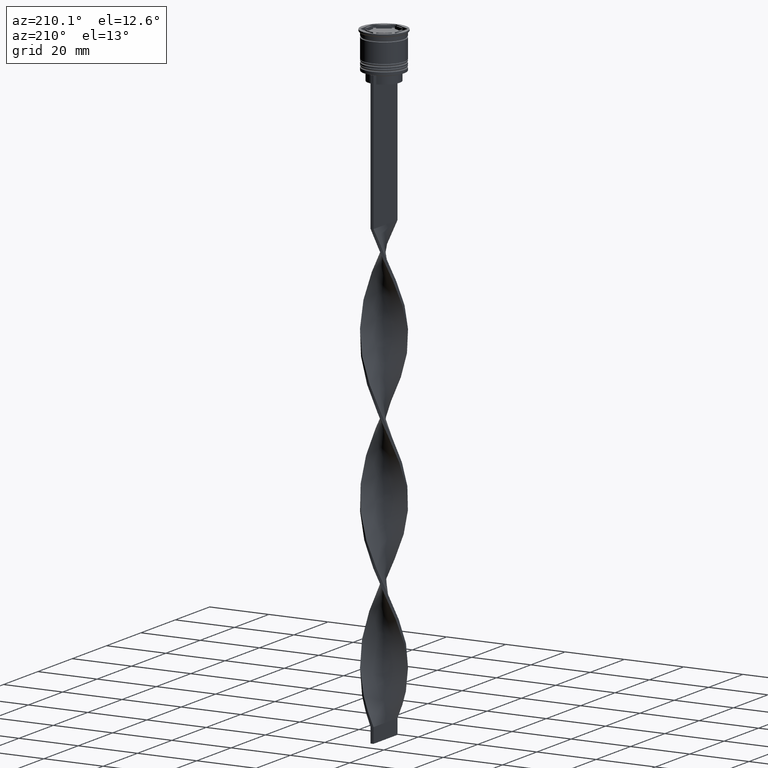
[diagram: clean part render]
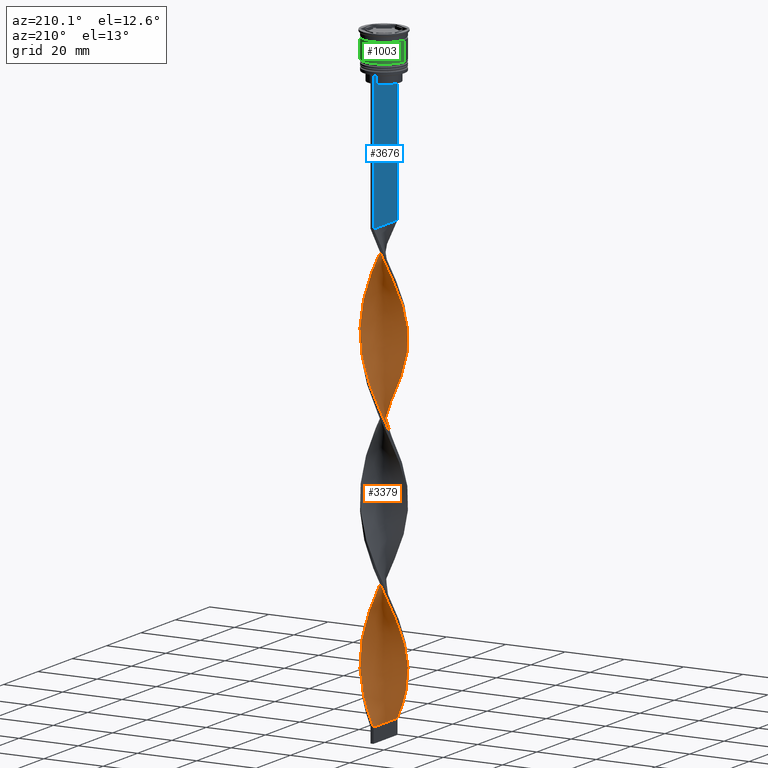
[diagram: same view with three faces highlighted in distinct colors, each labeled with its STEP entity id]
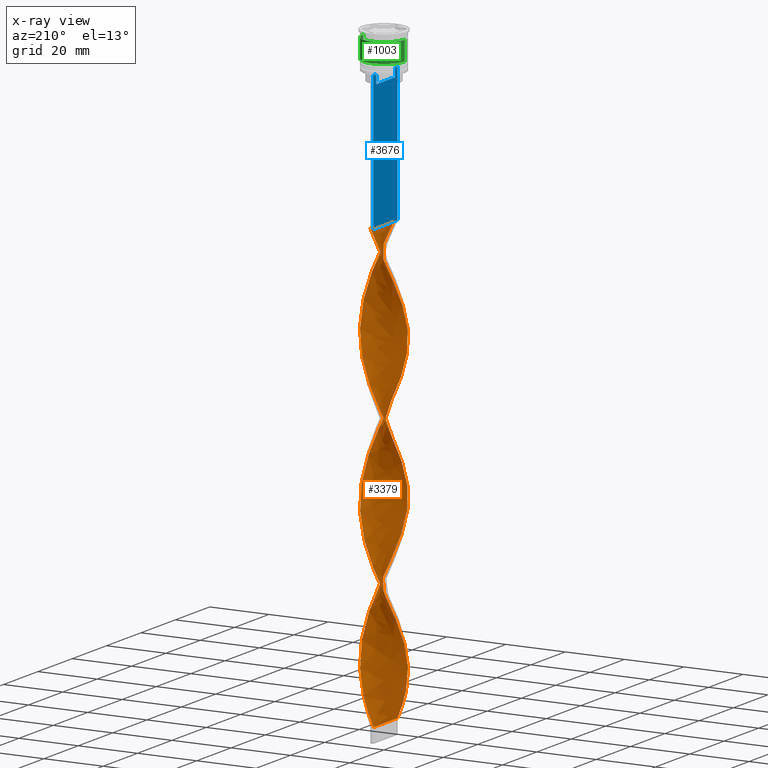
[diagram: x-ray of the same camera — body ghosted, the three highlighted faces saturated]
A machine part, auxiliary view with three faces highlighted in distinct colors.
The next image is the same camera in x-ray (body ghosted, the three faces saturated) — at least one of them is partly hidden behind the body in this view.
Their STEP definitions:

[orange] entity #3379 — the highlighted face is a freeform B-spline surface patch.
#18 = CARTESIAN_POINT ( 'NONE',  ( -5.533515242862685035, -4.364985304700188529, -194.3529411764705799 ) ) ;
#27 = CARTESIAN_POINT ( 'NONE',  ( 7.002558135184063559, -0.7981649056490300875, -80.41176470588234793 ) ) ;
#39 = CARTESIAN_POINT ( 'NONE',  ( -1.777733174557944107, -6.788936938879031047, -204.5784313725490335 ) ) ;
#47 = CARTESIAN_POINT ( 'NONE',  ( 7.029988692409719242, 0.5021420494578368032, -83.33333333333332860 ) ) ;
#54 = CARTESIAN_POINT ( 'NONE',  ( -6.373874598089927623, 3.007758344858555866, -176.8235294117647243 ) ) ;
#64 = CARTESIAN_POINT ( 'NONE',  ( -0.1486455236942086366, 7.046331823121017912, -59.96078431372549034 ) ) ;
#72 = CARTESIAN_POINT ( 'NONE',  ( 4.346365046915572350, -5.509910242367894284, -119.8529411764705799 ) ) ;
#90 = CARTESIAN_POINT ( 'NONE',  ( -6.241360575439927949, -3.273882377329165649, -92.09803921568628482 ) ) ;
#95 = CARTESIAN_POINT ( 'NONE',  ( 7.016273413796896286, 0.1480114280955937833, -134.4607843137254974 ) ) ;
#107 = CARTESIAN_POINT ( 'NONE',  ( 1.777733174557941886, 6.788936938879031047, -154.9117647058823479 ) ) ;
#114 = CARTESIAN_POINT ( 'NONE',  ( 7.016273413796890068, -0.1480114280955966977, -81.87254901960783116 ) ) ;
#127 = CARTESIAN_POINT ( 'NONE',  ( 4.637232685409779620, 5.307443892742486291, -147.6078431372548891 ) ) ;
#130 = CARTESIAN_POINT ( 'NONE',  ( 5.085373964136229219, -4.836214598721332969, -70.18627450980390847 ) ) ;
#139 =( BOUNDED_CURVE ( )  B_SPLINE_CURVE ( 2, ( #2119, #574, #3267, #1538, #2750, #2361, #3636, #3894, #1512, #3005, #1750, #1813, #338, #599, #938, #27, #246, #47, #269, #1253, #1186, #1491, #2079, #2448, #1792, #3859, #2705, #2408, #1207, #3613, #3653, #960, #922, #2143, #1774, #2099, #1454, #2666, #1170, #3568, #878, #1471, #1235, #2053, #2686, #3876, #2380, #784, #3117, #3465, #3803, #760, #190, #1965, #3176, #2281, #1388, #159, #1907, #473, #2547, #2295, #3759, #3723, #3489, #3744, #1670, #1110, #803, #1318, #1980, #2565, #1032, #2884, #3447, #2221, #452, #414, #3186, #1629, #1052, #3429, #1610, #491, #1942, #2523, #1072, #2824, #1093, #741, #1926, #1686, #2900, #3134, #2584, #2867, #175, #3152, #718, #1368, #2605, #2241, #435 ),
 .UNSPECIFIED., .F., .T. ) 
 B_SPLINE_CURVE_WITH_KNOTS ( ( 3, 2, 2, 2, 2, 2, 2, 2, 2, 2, 2, 2, 2, 2, 2, 2, 2, 2, 2, 2, 2, 2, 2, 2, 2, 2, 2, 2, 2, 2, 2, 2, 2, 2, 2, 2, 2, 2, 2, 2, 2, 2, 2, 2, 2, 2, 2, 2, 2, 2, 2, 3 ),
 ( 0.000000000000000000, 0.01470588235294117453, 0.02941176470588234906, 0.04411764705882353227, 0.05882352941176469813, 0.07352941176470588480, 0.08823529411764706454, 0.1029411764705882443, 0.1176470588235293963, 0.1323529411764705899, 0.1470588235294117696, 0.1617647058823529493, 0.1764705882352941291, 0.1911764705882352811, 0.2058823529411764885, 0.2205882352941176405, 0.2352941176470587925, 0.2500000000000000000, 0.2647058823529411797, 0.2794117647058823595, 0.2941176470588235392, 0.3088235294117647189, 0.3235294117647058987, 0.3382352941176470229, 0.3529411764705882582, 0.3676470588235294379, 0.3823529411764705621, 0.3970588235294117418, 0.4117647058823529771, 0.4264705882352941013, 0.4411764705882352811, 0.4558823529411764608, 0.4705882352941175850, 0.4852941176470588203, 0.5000000000000000000, 0.5147058823529411242, 0.5294117647058823595, 0.5441176470588234837, 0.5588235294117647189, 0.5735294117647058432, 0.5882352941176470784, 0.6029411764705882026, 0.6176470588235294379, 0.6323529411764705621, 0.6470588235294117974, 0.6617647058823529216, 0.6764705882352940458, 0.6911764705882351700, 0.7058823529411765163, 0.7205882352941176405, 0.7352941176470588758, 0.7500000000000000000 ),
 .UNSPECIFIED. ) 
 CURVE ( )  GEOMETRIC_REPRESENTATION_ITEM ( )  RATIONAL_B_SPLINE_CURVE ( ( 1.000000000000000000, 0.9957341762950344677, 1.000000000000000000, 0.9957341762950344677, 1.000000000000000000, 0.9957341762950344677, 1.000000000000000000, 0.9957341762950344677, 1.000000000000000000, 0.9957341762950344677, 1.000000000000000000, 0.9957341762950344677, 1.000000000000000000, 0.9957341762950344677, 1.000000000000000000, 0.9957341762950344677, 1.000000000000000000, 0.9957341762950344677, 1.000000000000000000, 0.9957341762950344677, 1.000000000000000000, 0.9957341762950344677, 1.000000000000000000, 0.9957341762950344677, 1.000000000000000000, 0.9957341762950344677, 1.000000000000000000, 0.9957341762950344677, 1.000000000000000000, 0.9957341762950344677, 1.000000000000000000, 0.9957341762950344677, 1.000000000000000000, 0.9957341762950344677, 1.000000000000000000, 0.9957341762950344677, 1.000000000000000000, 0.9957341762950344677, 1.000000000000000000, 0.9957341762950344677, 1.000000000000000000, 0.9957341762950344677, 1.000000000000000000, 0.9957341762950344677, 1.000000000000000000, 0.9957341762950344677, 1.000000000000000000, 0.9957341762950344677, 1.000000000000000000, 0.9957341762950344677, 1.000000000000000000, 0.9957341762950344677, 1.000000000000000000, 0.9957341762950344677, 1.000000000000000000, 0.9957341762950344677, 1.000000000000000000, 0.9957341762950344677, 1.000000000000000000, 0.9957341762950344677, 1.000000000000000000, 0.9957341762950344677, 1.000000000000000000, 0.9957341762950344677, 1.000000000000000000, 0.9957341762950344677, 1.000000000000000000, 0.9957341762950344677, 1.000000000000000000, 0.9957341762950344677, 1.000000000000000000, 0.9957341762950344677, 1.000000000000000000, 0.9957341762950344677, 1.000000000000000000, 0.9957341762950344677, 1.000000000000000000, 0.9957341762950344677, 1.000000000000000000, 0.9957341762950344677, 1.000000000000000000, 0.9957341762950344677, 1.000000000000000000, 0.9957341762950344677, 1.000000000000000000, 0.9957341762950344677, 1.000000000000000000, 0.9957341762950344677, 1.000000000000000000, 0.9957341762950344677, 1.000000000000000000, 0.9957341762950344677, 1.000000000000000000, 0.9957341762950344677, 1.000000000000000000, 0.9957341762950344677, 1.000000000000000000, 0.9957341762950344677, 1.000000000000000000, 0.9957341762950344677, 1.000000000000000000, 0.9957341762950344677, 1.000000000000000000 ) ) 
 REPRESENTATION_ITEM ( '' )  );
#150 = CARTESIAN_POINT ( 'NONE',  ( -1.440874626053875174, 6.899041090270183751, -162.2156862745098351 ) ) ;
#154 = CARTESIAN_POINT ( 'NONE',  ( 0.5000000000000000000, -6.999999999999997335, -58.50000000000000000 ) ) ;
#159 = CARTESIAN_POINT ( 'NONE',  ( -5.712673125104408278, -4.127741927368044017, -141.7647058823529562 ) ) ;
#166 = CARTESIAN_POINT ( 'NONE',  ( -3.583034730602821405, -6.069163844594760882, -100.8627450980392126 ) ) ;
#170 = CARTESIAN_POINT ( 'NONE',  ( -1.148645523694208581, 6.953668176878982088, -109.6274509803921546 ) ) ;
#175 = CARTESIAN_POINT ( 'NONE',  ( 3.259916572276681634, 6.214736031545974981, -198.7352941176470722 ) ) ;
#190 = CARTESIAN_POINT ( 'NONE',  ( -6.924005054333588483, -1.143745604390627779, -134.4607843137254974 ) ) ;
#206 = CARTESIAN_POINT ( 'NONE',  ( 0.5000000000000000000, -6.999999999999997335, -157.8333333333333144 ) ) ;
#219 = CARTESIAN_POINT ( 'NONE',  ( 3.259916572276681634, 6.214736031545974981, -198.7352941176470722 ) ) ;
#223 = CARTESIAN_POINT ( 'NONE',  ( -2.994927778012249409, -6.346684772736916891, -102.3235294117646959 ) ) ;
#231 = CARTESIAN_POINT ( 'NONE',  ( -4.856933420439688120, 5.107160209221786928, -170.9803921568627629 ) ) ;
#246 = CARTESIAN_POINT ( 'NONE',  ( 7.016273413796890068, -0.1480114280955966977, -81.87254901960783116 ) ) ;
#249 = DIRECTION ( 'NONE',  ( 0.000000000000000000, 1.000000000000000000, 0.000000000000000000 ) ) ;
#254 = CARTESIAN_POINT ( 'NONE',  ( 6.489012217373702818, -2.672586844758235713, -175.3627450980391984 ) ) ;
#260 = CARTESIAN_POINT ( 'NONE',  ( -4.110133708006299180, -5.688303868668623586, -99.40196078431372939 ) ) ;
#269 = CARTESIAN_POINT ( 'NONE',  ( 6.924005054333588483, 1.143745604390630222, -84.79411764705882604 ) ) ;
#279 = CARTESIAN_POINT ( 'NONE',  ( -7.016273413796896286, -0.1480114280955961703, -84.79411764705882604 ) ) ;
#300 = CARTESIAN_POINT ( 'NONE',  ( -6.869610997245777284, -1.434728108918171596, -187.0490196078431211 ) ) ;
#329 = CARTESIAN_POINT ( 'NONE',  ( -3.835796673391458800, 5.912660275514003416, -168.0588235294117680 ) ) ;
#338 = CARTESIAN_POINT ( 'NONE',  ( 6.489012217373702818, -2.672586844758235713, -76.02941176470586981 ) ) ;
#348 = CARTESIAN_POINT ( 'NONE',  ( 2.994927778012250297, 6.346684772736916891, -151.9901960784313530 ) ) ;
#367 = CARTESIAN_POINT ( 'NONE',  ( 7.002558135184068000, 0.7981649056490325300, -135.9215686274509665 ) ) ;
#380 = CARTESIAN_POINT ( 'NONE',  ( 5.712673125104411831, -4.127741927368048458, -124.2352941176470580 ) ) ;
#386 = CARTESIAN_POINT ( 'NONE',  ( 4.637232685409780508, 5.307443892742486291, -147.6078431372548891 ) ) ;
#394 = ORIENTED_EDGE ( 'NONE', *, *, #2744, .F. ) ;
#402 = CARTESIAN_POINT ( 'NONE',  ( 5.085373964136231884, 4.836214598721338298, -146.1470588235294201 ) ) ;
#408 = CARTESIAN_POINT ( 'NONE',  ( 5.533515242862682371, -4.364985304700184976, -71.64705882352943433 ) ) ;
#414 = CARTESIAN_POINT ( 'NONE',  ( 5.533515242862682371, -4.364985304700184976, -170.9803921568627629 ) ) ;
#424 = CARTESIAN_POINT ( 'NONE',  ( -6.869610997245777284, -1.434728108918171596, -87.71568627450979250 ) ) ;
#429 = CARTESIAN_POINT ( 'NONE',  ( -6.241360575439921732, 3.273882377329163873, -124.2352941176470580 ) ) ;
#435 = CARTESIAN_POINT ( 'NONE',  ( -0.4999999999999991673, 6.999999999999997335, -207.5000000000000000 ) ) ;
#443 = CARTESIAN_POINT ( 'NONE',  ( 6.373874598089927623, -3.007758344858554977, -127.1568627450980244 ) ) ;
#446 = CARTESIAN_POINT ( 'NONE',  ( 7.002558135184062671, -0.7981649056490300875, -80.41176470588234793 ) ) ;
#452 = CARTESIAN_POINT ( 'NONE',  ( 5.085373964136229219, -4.836214598721332969, -169.5196078431372371 ) ) ;
#465 = CARTESIAN_POINT ( 'NONE',  ( -7.029988692409724571, 0.5021420494578376914, -83.33333333333332860 ) ) ;
#470 = CARTESIAN_POINT ( 'NONE',  ( -6.373874598089923182, -3.007758344858550981, -138.8431372549019045 ) ) ;
#473 = CARTESIAN_POINT ( 'NONE',  ( -4.856933420439682791, -5.107160209221785152, -144.6862745098039227 ) ) ;
#486 = CARTESIAN_POINT ( 'NONE',  ( -6.043273861597164398, -3.567750136113299941, -140.3039215686274588 ) ) ;
#491 = CARTESIAN_POINT ( 'NONE',  ( 7.002558135184063559, -0.7981649056490300875, -179.7450980392157476 ) ) ;
#500 = CARTESIAN_POINT ( 'NONE',  ( 3.583034730602817852, -6.069163844594756441, -165.1372549019608016 ) ) ;
#504 = CARTESIAN_POINT ( 'NONE',  ( -5.887437909151307380, -3.819433841014676201, -93.55882352941176805 ) ) ;
#555 = CARTESIAN_POINT ( 'NONE',  ( -6.869610997245777284, -1.434728108918171596, -187.0490196078431211 ) ) ;
#562 = CARTESIAN_POINT ( 'NONE',  ( -3.583034730602820961, -6.069163844594760882, -100.8627450980392126 ) ) ;
#574 = CARTESIAN_POINT ( 'NONE',  ( 1.148645523694208137, -6.953668176878982088, -59.96078431372549034 ) ) ;
#581 = CARTESIAN_POINT ( 'NONE',  ( 5.887437909151302939, -3.819433841014673536, -172.4411764705882035 ) ) ;
#589 = CARTESIAN_POINT ( 'NONE',  ( 0.5000000000000000000, -6.999999999999997335, -58.50000000000000000 ) ) ;
#599 = CARTESIAN_POINT ( 'NONE',  ( 6.736663859307483904, -2.071291312187310663, -77.49019607843136725 ) ) ;
#602 = CARTESIAN_POINT ( 'NONE',  ( -0.7947600748740419885, 6.972686456695599944, -61.42156862745097357 ) ) ;
#607 = CARTESIAN_POINT ( 'NONE',  ( 5.887437909151308268, 3.819433841014675313, -143.2254901960784537 ) ) ;
#627 = CARTESIAN_POINT ( 'NONE',  ( -1.440874626053875396, 6.899041090270183751, -162.2156862745098351 ) ) ;
#644 = CARTESIAN_POINT ( 'NONE',  ( -5.284803272772050420, 4.617451068294916361, -73.10784313725488914 ) ) ;
#655 = CARTESIAN_POINT ( 'NONE',  ( -1.148645523694207693, -6.953668176878989193, -206.0392156862745026 ) ) ;
#671 = CARTESIAN_POINT ( 'NONE',  ( -4.346365046915572350, 5.509910242367894284, -169.5196078431372371 ) ) ;
#687 = CARTESIAN_POINT ( 'NONE',  ( -6.818021416257463940, 1.785349159323425861, -179.7450980392157192 ) ) ;
#701 = CARTESIAN_POINT ( 'NONE',  ( 6.489012217373707259, 2.672586844758239710, -140.3039215686274588 ) ) ;
#707 = CARTESIAN_POINT ( 'NONE',  ( -3.259916572276685187, -6.214736031545972317, -149.0686274509803866 ) ) ;
#714 = VECTOR ( 'NONE', #249, 1000.000000000000000 ) ;
#718 = CARTESIAN_POINT ( 'NONE',  ( 2.062455548607891487, 6.707926438924064705, -201.6568627450980387 ) ) ;
#731 = CARTESIAN_POINT ( 'NONE',  ( -5.085373964136233660, -4.836214598721335634, -96.48039215686274872 ) ) ;
#736 = CARTESIAN_POINT ( 'NONE',  ( -5.533515242862683259, 4.364985304700184088, -121.3137254901960631 ) ) ;
#741 = CARTESIAN_POINT ( 'NONE',  ( 6.373874598089922294, 3.007758344858553201, -188.5098039215686185 ) ) ;
#751 = CARTESIAN_POINT ( 'NONE',  ( 0.5000000000000000000, 7.000000000000002665, -157.8333333333333144 ) ) ;
#755 = CARTESIAN_POINT ( 'NONE',  ( -5.284803272772048643, -4.617451068294911032, -143.2254901960784537 ) ) ;
#760 = CARTESIAN_POINT ( 'NONE',  ( -7.029988692409719242, -0.5021420494578359150, -133.0000000000000000 ) ) ;
#771 = CARTESIAN_POINT ( 'NONE',  ( -4.110133708006299180, -5.688303868668623586, -99.40196078431372939 ) ) ;
#775 = CARTESIAN_POINT ( 'NONE',  ( -6.595948007173689120, -2.396553752090988088, -137.3823529411764639 ) ) ;
#784 = CARTESIAN_POINT ( 'NONE',  ( -6.736663859307483904, 2.071291312187310663, -127.1568627450980244 ) ) ;
#800 = CARTESIAN_POINT ( 'NONE',  ( -5.085373964136229219, 4.836214598721332969, -119.8529411764705799 ) ) ;
#803 = CARTESIAN_POINT ( 'NONE',  ( 0.5000000000000000000, -6.999999999999997335, -157.8333333333333144 ) ) ;
#817 = CARTESIAN_POINT ( 'NONE',  ( -0.7947600748740419885, 6.972686456695599944, -61.42156862745097357 ) ) ;
#823 = CARTESIAN_POINT ( 'NONE',  ( -7.002558135184068888, -0.7981649056490316418, -185.5882352941176237 ) ) ;
#830 = FACE_OUTER_BOUND ( 'NONE', #3388, .T. ) ;
#851 = CARTESIAN_POINT ( 'NONE',  ( 2.684036471161911575, 6.516811787577952764, -200.1960784313725981 ) ) ;
#854 = CARTESIAN_POINT ( 'NONE',  ( -5.284803272772050420, 4.617451068294916361, -73.10784313725488914 ) ) ;
#862 = CARTESIAN_POINT ( 'NONE',  ( -5.712673125104412719, 4.127741927368047570, -173.9019607843137294 ) ) ;
#866 = CARTESIAN_POINT ( 'NONE',  ( -2.684036471161909354, -6.516811787577954540, -150.5294117647058840 ) ) ;
#870 = CARTESIAN_POINT ( 'NONE',  ( 0.1486455236942091918, -7.046331823121017912, -109.6274509803921546 ) ) ;
#878 = CARTESIAN_POINT ( 'NONE',  ( -4.110133708006297404, 5.688303868668618257, -116.9313725490195992 ) ) ;
#912 = CARTESIAN_POINT ( 'NONE',  ( 2.406820825421681409, 6.624205700879070235, -153.4509803921568789 ) ) ;
#922 = CARTESIAN_POINT ( 'NONE',  ( 0.7947600748740411003, 6.972686456695594615, -105.2450980392156765 ) ) ;
#927 = VERTEX_POINT ( 'NONE', #1665 ) ;
#929 = CARTESIAN_POINT ( 'NONE',  ( 5.284803272772050420, -4.617451068294917249, -122.7745098039215605 ) ) ;
#938 = CARTESIAN_POINT ( 'NONE',  ( 6.869610997245771955, -1.434728108918169154, -78.95098039215686470 ) ) ;
#953 = CARTESIAN_POINT ( 'NONE',  ( -5.712673125104412719, 4.127741927368047570, -173.9019607843137294 ) ) ;
#960 = CARTESIAN_POINT ( 'NONE',  ( 1.440874626053875174, 6.899041090270179311, -103.7843137254901791 ) ) ;
#973 = CARTESIAN_POINT ( 'NONE',  ( 6.924005054333593812, -1.143745604390631110, -131.5392156862745310 ) ) ;
#989 = CARTESIAN_POINT ( 'NONE',  ( -7.029988692409723683, 0.5021420494578376914, -182.6666666666666572 ) ) ;
#1004 = CARTESIAN_POINT ( 'NONE',  ( 6.736663859307490121, 2.071291312187309774, -138.8431372549019329 ) ) ;
#1007 = CARTESIAN_POINT ( 'NONE',  ( 6.043273861597165286, 3.567750136113297277, -90.63725490196078738 ) ) ;
#1019 = CARTESIAN_POINT ( 'NONE',  ( -6.489012217373707259, -2.672586844758237490, -90.63725490196078738 ) ) ;
#1024 = CARTESIAN_POINT ( 'NONE',  ( -5.887437909151302051, 3.819433841014674424, -122.7745098039215605 ) ) ;
#1031 = CARTESIAN_POINT ( 'NONE',  ( -0.5000000000000008882, -7.000000000000002665, -207.5000000000000000 ) ) ;
#1032 = CARTESIAN_POINT ( 'NONE',  ( 2.994927778012247632, -6.346684772736912450, -163.6764705882352757 ) ) ;
#1041 = CARTESIAN_POINT ( 'NONE',  ( -5.712673125104412719, 4.127741927368047570, -74.56862745098038658 ) ) ;
#1047 = CARTESIAN_POINT ( 'NONE',  ( 5.887437909151302939, -3.819433841014673536, -73.10784313725488914 ) ) ;
#1052 = CARTESIAN_POINT ( 'NONE',  ( 6.489012217373702818, -2.672586844758235713, -175.3627450980391984 ) ) ;
#1060 = CARTESIAN_POINT ( 'NONE',  ( 4.346365046915572350, -5.509910242367894284, -119.8529411764705799 ) ) ;
#1065 = CARTESIAN_POINT ( 'NONE',  ( 1.440874626053875396, 6.899041090270179311, -103.7843137254901933 ) ) ;
#1072 = CARTESIAN_POINT ( 'NONE',  ( 6.924005054333588483, 1.143745604390630222, -184.1274509803921546 ) ) ;
#1081 = CARTESIAN_POINT ( 'NONE',  ( 2.062455548607894595, -6.707926438924068258, -114.0098039215686185 ) ) ;
#1086 = CARTESIAN_POINT ( 'NONE',  ( 4.346365046915569685, 5.509910242367890731, -96.48039215686274872 ) ) ;
#1093 = CARTESIAN_POINT ( 'NONE',  ( 6.595948007173689120, 2.396553752090988976, -187.0490196078431211 ) ) ;
#1106 = CARTESIAN_POINT ( 'NONE',  ( 6.373874598089922294, 3.007758344858553201, -188.5098039215686185 ) ) ;
#1110 = CARTESIAN_POINT ( 'NONE',  ( -0.1486455236942079983, -7.046331823121014359, -156.3725490196078454 ) ) ;
#1115 = CARTESIAN_POINT ( 'NONE',  ( 0.5000000000000000000, -6.999999999999997335, -58.50000000000000000 ) ) ;
#1121 = CARTESIAN_POINT ( 'NONE',  ( -5.712673125104412719, 4.127741927368047570, -74.56862745098038658 ) ) ;
#1129 = CARTESIAN_POINT ( 'NONE',  ( -4.346365046915572350, 5.509910242367894284, -169.5196078431372371 ) ) ;
#1134 = CARTESIAN_POINT ( 'NONE',  ( -4.637232685409779620, -5.307443892742487179, -97.94117647058824616 ) ) ;
#1163 = CARTESIAN_POINT ( 'NONE',  ( -6.043273861597169727, 3.567750136113300385, -76.02941176470586981 ) ) ;
#1170 = CARTESIAN_POINT ( 'NONE',  ( -2.994927778012248520, 6.346684772736911562, -114.0098039215686185 ) ) ;
#1174 = CARTESIAN_POINT ( 'NONE',  ( 4.856933420439684568, 5.107160209221783376, -194.3529411764705799 ) ) ;
#1186 = CARTESIAN_POINT ( 'NONE',  ( 6.595948007173689120, 2.396553752090988976, -87.71568627450979250 ) ) ;
#1207 = CARTESIAN_POINT ( 'NONE',  ( 3.259916572276681634, 6.214736031545974981, -99.40196078431372939 ) ) ;
#1224 = CARTESIAN_POINT ( 'NONE',  ( -5.085373964136233660, -4.836214598721335634, -195.8137254901960773 ) ) ;
#1230 =( BOUNDED_CURVE ( )  B_SPLINE_CURVE ( 2, ( #2103, #64, #602, #3681, #3009, #3319, #3380, #2385, #2126, #3343, #644, #1041, #3420, #3109, #3698, #1952, #1361, #465, #2797, #3458, #424, #3168, #1019, #90, #1915, #2534, #731, #3735, #771, #166, #1325, #1664, #2876, #3401, #2575, #2855, #2268, #3767, #1081, #2188, #3477, #3083, #1060, #1880, #1582, #380, #1289, #443, #2207, #1933, #3126, #1617, #2492, #3751, #3142, #1004, #701, #2230, #1896, #2831, #402, #127, #1599, #2556, #1638, #2811, #107, #3439, #751, #1305, #3711, #150, #2511, #1349, #2250, #1989, #1129, #231, #2964, #862, #2040, #2945, #2319, #1751, #3232, #1431, #2668, #823, #555, #2594, #3192, #1415, #3841, #2628, #3549, #2289, #2362, #3824, #3791, #2343, #2611, #2300, #1374 ),
 .UNSPECIFIED., .F., .T. ) 
 B_SPLINE_CURVE_WITH_KNOTS ( ( 3, 2, 2, 2, 2, 2, 2, 2, 2, 2, 2, 2, 2, 2, 2, 2, 2, 2, 2, 2, 2, 2, 2, 2, 2, 2, 2, 2, 2, 2, 2, 2, 2, 2, 2, 2, 2, 2, 2, 2, 2, 2, 2, 2, 2, 2, 2, 2, 2, 2, 2, 3 ),
 ( 0.000000000000000000, 0.01470588235294117453, 0.02941176470588234906, 0.04411764705882353227, 0.05882352941176469813, 0.07352941176470588480, 0.08823529411764706454, 0.1029411764705882443, 0.1176470588235293963, 0.1323529411764705899, 0.1470588235294117696, 0.1617647058823529493, 0.1764705882352941291, 0.1911764705882352811, 0.2058823529411764885, 0.2205882352941176405, 0.2352941176470587925, 0.2500000000000000000, 0.2647058823529411797, 0.2794117647058823595, 0.2941176470588235392, 0.3088235294117647189, 0.3235294117647058987, 0.3382352941176470229, 0.3529411764705882582, 0.3676470588235294379, 0.3823529411764705621, 0.3970588235294117418, 0.4117647058823529771, 0.4264705882352941013, 0.4411764705882352811, 0.4558823529411764608, 0.4705882352941175850, 0.4852941176470588203, 0.5000000000000000000, 0.5147058823529411242, 0.5294117647058823595, 0.5441176470588234837, 0.5588235294117647189, 0.5735294117647058432, 0.5882352941176470784, 0.6029411764705882026, 0.6176470588235294379, 0.6323529411764705621, 0.6470588235294117974, 0.6617647058823529216, 0.6764705882352940458, 0.6911764705882351700, 0.7058823529411765163, 0.7205882352941176405, 0.7352941176470588758, 0.7500000000000000000 ),
 .UNSPECIFIED. ) 
 CURVE ( )  GEOMETRIC_REPRESENTATION_ITEM ( )  RATIONAL_B_SPLINE_CURVE ( ( 1.000000000000000000, 0.9957341762950344677, 1.000000000000000000, 0.9957341762950344677, 1.000000000000000000, 0.9957341762950344677, 1.000000000000000000, 0.9957341762950344677, 1.000000000000000000, 0.9957341762950344677, 1.000000000000000000, 0.9957341762950344677, 1.000000000000000000, 0.9957341762950344677, 1.000000000000000000, 0.9957341762950344677, 1.000000000000000000, 0.9957341762950344677, 1.000000000000000000, 0.9957341762950344677, 1.000000000000000000, 0.9957341762950344677, 1.000000000000000000, 0.9957341762950344677, 1.000000000000000000, 0.9957341762950344677, 1.000000000000000000, 0.9957341762950344677, 1.000000000000000000, 0.9957341762950344677, 1.000000000000000000, 0.9957341762950344677, 1.000000000000000000, 0.9957341762950344677, 1.000000000000000000, 0.9957341762950344677, 1.000000000000000000, 0.9957341762950344677, 1.000000000000000000, 0.9957341762950344677, 1.000000000000000000, 0.9957341762950344677, 1.000000000000000000, 0.9957341762950344677, 1.000000000000000000, 0.9957341762950344677, 1.000000000000000000, 0.9957341762950344677, 1.000000000000000000, 0.9957341762950344677, 1.000000000000000000, 0.9957341762950344677, 1.000000000000000000, 0.9957341762950344677, 1.000000000000000000, 0.9957341762950344677, 1.000000000000000000, 0.9957341762950344677, 1.000000000000000000, 0.9957341762950344677, 1.000000000000000000, 0.9957341762950344677, 1.000000000000000000, 0.9957341762950344677, 1.000000000000000000, 0.9957341762950344677, 1.000000000000000000, 0.9957341762950344677, 1.000000000000000000, 0.9957341762950344677, 1.000000000000000000, 0.9957341762950344677, 1.000000000000000000, 0.9957341762950344677, 1.000000000000000000, 0.9957341762950344677, 1.000000000000000000, 0.9957341762950344677, 1.000000000000000000, 0.9957341762950344677, 1.000000000000000000, 0.9957341762950344677, 1.000000000000000000, 0.9957341762950344677, 1.000000000000000000, 0.9957341762950344677, 1.000000000000000000, 0.9957341762950344677, 1.000000000000000000, 0.9957341762950344677, 1.000000000000000000, 0.9957341762950344677, 1.000000000000000000, 0.9957341762950344677, 1.000000000000000000, 0.9957341762950344677, 1.000000000000000000, 0.9957341762950344677, 1.000000000000000000, 0.9957341762950344677, 1.000000000000000000, 0.9957341762950344677, 1.000000000000000000 ) ) 
 REPRESENTATION_ITEM ( '' )  );
#1235 = CARTESIAN_POINT ( 'NONE',  ( -5.085373964136229219, 4.836214598721332969, -119.8529411764705799 ) ) ;
#1245 = CARTESIAN_POINT ( 'NONE',  ( 2.684036471161912019, -6.516811787577958981, -115.4705882352940876 ) ) ;
#1253 = CARTESIAN_POINT ( 'NONE',  ( 6.818021416257458611, 1.785349159323425638, -86.25490196078432348 ) ) ;
#1259 = CARTESIAN_POINT ( 'NONE',  ( 4.856933420439689009, -5.107160209221786040, -121.3137254901960631 ) ) ;
#1278 = CARTESIAN_POINT ( 'NONE',  ( 6.489012217373707259, 2.672586844758239710, -140.3039215686274588 ) ) ;
#1289 = CARTESIAN_POINT ( 'NONE',  ( 6.043273861597170615, -3.567750136113298609, -125.6960784313725412 ) ) ;
#1294 = CARTESIAN_POINT ( 'NONE',  ( -3.583034730602816964, 6.069163844594756441, -115.4705882352940876 ) ) ;
#1305 = CARTESIAN_POINT ( 'NONE',  ( -0.1486455236942086366, 7.046331823121017912, -159.2941176470588118 ) ) ;
#1311 = CARTESIAN_POINT ( 'NONE',  ( 5.284803272772047755, 4.617451068294911920, -93.55882352941176805 ) ) ;
#1318 = CARTESIAN_POINT ( 'NONE',  ( 1.148645523694208137, -6.953668176878982088, -159.2941176470588118 ) ) ;
#1325 = CARTESIAN_POINT ( 'NONE',  ( -2.994927778012249409, -6.346684772736916891, -102.3235294117646959 ) ) ;
#1332 = CARTESIAN_POINT ( 'NONE',  ( -6.869610997245771955, 1.434728108918171596, -128.6176470588235361 ) ) ;
#1349 = CARTESIAN_POINT ( 'NONE',  ( -2.684036471161912907, 6.516811787577958981, -165.1372549019608016 ) ) ;
#1353 = CARTESIAN_POINT ( 'NONE',  ( 4.637232685409776067, -5.307443892742482738, -68.72549019607842524 ) ) ;
#1361 = CARTESIAN_POINT ( 'NONE',  ( -6.924005054333592923, 1.143745604390631554, -81.87254901960783116 ) ) ;
#1364 = CARTESIAN_POINT ( 'NONE',  ( 2.994927778012247632, -6.346684772736912450, -64.34313725490196134 ) ) ;
#1368 = CARTESIAN_POINT ( 'NONE',  ( 1.440874626053875174, 6.899041090270179311, -203.1176470588235361 ) ) ;
#1374 = CARTESIAN_POINT ( 'NONE',  ( -0.5000000000000008882, -7.000000000000002665, -207.5000000000000000 ) ) ;
#1388 = CARTESIAN_POINT ( 'NONE',  ( -6.043273861597164398, -3.567750136113299941, -140.3039215686274588 ) ) ;
#1403 = CARTESIAN_POINT ( 'NONE',  ( -1.440874626053876062, -6.899041090270178422, -153.4509803921568789 ) ) ;
#1415 = CARTESIAN_POINT ( 'NONE',  ( -6.241360575439927949, -3.273882377329165649, -191.4313725490196134 ) ) ;
#1431 = CARTESIAN_POINT ( 'NONE',  ( -7.029988692409724571, 0.5021420494578376914, -182.6666666666666856 ) ) ;
#1434 = CARTESIAN_POINT ( 'NONE',  ( -0.1486455236942079983, -7.046331823121014359, -156.3725490196078454 ) ) ;
#1439 = CARTESIAN_POINT ( 'NONE',  ( -0.5000000000000008882, -7.000000000000002665, -108.1666666666666572 ) ) ;
#1454 = CARTESIAN_POINT ( 'NONE',  ( -1.777733174557940998, 6.788936938879025718, -111.0882352941176379 ) ) ;
#1460 = CARTESIAN_POINT ( 'NONE',  ( 4.110133708006296516, -5.688303868668619145, -166.5980392156862706 ) ) ;
#1471 = CARTESIAN_POINT ( 'NONE',  ( -4.637232685409775179, 5.307443892742482738, -118.3921568627451109 ) ) ;
#1491 = CARTESIAN_POINT ( 'NONE',  ( 6.373874598089922294, 3.007758344858553201, -89.17647058823528994 ) ) ;
#1501 = CARTESIAN_POINT ( 'NONE',  ( -6.489012217373707259, -2.672586844758237490, -189.9705882352941160 ) ) ;
#1512 = CARTESIAN_POINT ( 'NONE',  ( 5.085373964136229219, -4.836214598721332969, -70.18627450980390847 ) ) ;
#1529 = CARTESIAN_POINT ( 'NONE',  ( -2.994927778012249409, -6.346684772736916891, -201.6568627450980387 ) ) ;
#1538 = CARTESIAN_POINT ( 'NONE',  ( 2.406820825421677412, -6.624205700879067571, -62.88235294117647101 ) ) ;
#1547 = CARTESIAN_POINT ( 'NONE',  ( -2.062455548607893263, 6.707926438924069146, -163.6764705882352757 ) ) ;
#1563 = CARTESIAN_POINT ( 'NONE',  ( -5.284803272772050420, 4.617451068294916361, -172.4411764705882035 ) ) ;
#1582 = CARTESIAN_POINT ( 'NONE',  ( 5.284803272772050420, -4.617451068294917249, -122.7745098039215605 ) ) ;
#1589 = CARTESIAN_POINT ( 'NONE',  ( -6.736663859307489233, -2.071291312187311551, -188.5098039215686185 ) ) ;
#1599 = CARTESIAN_POINT ( 'NONE',  ( 4.110133708006300957, 5.688303868668621810, -149.0686274509803866 ) ) ;
#1605 = CARTESIAN_POINT ( 'NONE',  ( 4.110133708006296516, -5.688303868668619145, -67.26470588235292780 ) ) ;
#1610 = CARTESIAN_POINT ( 'NONE',  ( 6.869610997245771955, -1.434728108918169154, -178.2843137254901933 ) ) ;
#1617 = CARTESIAN_POINT ( 'NONE',  ( 7.029988692409724571, -0.5021420494578385796, -133.0000000000000000 ) ) ;
#1621 = CARTESIAN_POINT ( 'NONE',  ( -6.489012217373703706, 2.672586844758233937, -125.6960784313725412 ) ) ;
#1629 = CARTESIAN_POINT ( 'NONE',  ( 6.241360575439923508, -3.273882377329162985, -173.9019607843137294 ) ) ;
#1638 = CARTESIAN_POINT ( 'NONE',  ( 2.994927778012250297, 6.346684772736916891, -151.9901960784313530 ) ) ;
#1644 = CARTESIAN_POINT ( 'NONE',  ( 6.373874598089922294, 3.007758344858553201, -89.17647058823527573 ) ) ;
#1664 = CARTESIAN_POINT ( 'NONE',  ( -2.406820825421680521, -6.624205700879072012, -103.7843137254901791 ) ) ;
#1665 = CARTESIAN_POINT ( 'NONE',  ( -0.4999999999999991673, 6.999999999999997335, -207.5000000000000000 ) ) ;
#1667 = CARTESIAN_POINT ( 'NONE',  ( 5.712673125104408278, 4.127741927368045793, -92.09803921568628482 ) ) ;
#1670 = CARTESIAN_POINT ( 'NONE',  ( -0.7947600748740389909, -6.972686456695594615, -154.9117647058823479 ) ) ;
#1681 = CARTESIAN_POINT ( 'NONE',  ( 1.148645523694208137, -6.953668176878982088, -59.96078431372549744 ) ) ;
#1686 = CARTESIAN_POINT ( 'NONE',  ( 5.712673125104408278, 4.127741927368044905, -191.4313725490196134 ) ) ;
#1700 = CARTESIAN_POINT ( 'NONE',  ( 6.736663859307483904, -2.071291312187310663, -176.8235294117647243 ) ) ;
#1718 = CARTESIAN_POINT ( 'NONE',  ( 7.002558135184062671, -0.7981649056490300875, -179.7450980392157192 ) ) ;
#1723 = CARTESIAN_POINT ( 'NONE',  ( -2.062455548607893263, 6.707926438924069146, -64.34313725490196134 ) ) ;
#1741 = CARTESIAN_POINT ( 'NONE',  ( -6.736663859307489233, -2.071291312187311551, -89.17647058823527573 ) ) ;
#1750 = CARTESIAN_POINT ( 'NONE',  ( 5.887437909151302939, -3.819433841014673536, -73.10784313725488914 ) ) ;
#1751 = CARTESIAN_POINT ( 'NONE',  ( -6.818021416257463940, 1.785349159323425861, -179.7450980392157476 ) ) ;
#1754 = CARTESIAN_POINT ( 'NONE',  ( 6.043273861597165286, 3.567750136113297277, -189.9705882352941160 ) ) ;
#1757 = CARTESIAN_POINT ( 'NONE',  ( 0.7947600748740405452, -6.972686456695599944, -111.0882352941176379 ) ) ;
#1774 = CARTESIAN_POINT ( 'NONE',  ( -0.4999999999999991673, 6.999999999999997335, -108.1666666666666572 ) ) ;
#1792 = CARTESIAN_POINT ( 'NONE',  ( 5.284803272772047755, 4.617451068294911920, -93.55882352941176805 ) ) ;
#1804 = CARTESIAN_POINT ( 'NONE',  ( 6.595948007173694450, -2.396553752090992084, -128.6176470588235361 ) ) ;
#1813 = CARTESIAN_POINT ( 'NONE',  ( 6.241360575439923508, -3.273882377329162985, -74.56862745098038658 ) ) ;
#1826 = CARTESIAN_POINT ( 'NONE',  ( 3.259916572276685187, -6.214736031545978534, -116.9313725490195992 ) ) ;
#1850 = CARTESIAN_POINT ( 'NONE',  ( -3.583034730602820961, -6.069163844594760882, -200.1960784313725981 ) ) ;
#1866 = CARTESIAN_POINT ( 'NONE',  ( 5.533515242862684147, 4.364985304700190305, -144.6862745098039227 ) ) ;
#1880 = CARTESIAN_POINT ( 'NONE',  ( 4.856933420439689009, -5.107160209221786040, -121.3137254901960773 ) ) ;
#1882 = CARTESIAN_POINT ( 'NONE',  ( -0.5000000000000008882, -7.000000000000002665, -207.5000000000000000 ) ) ;
#1883 = CARTESIAN_POINT ( 'NONE',  ( 1.148645523694208581, 6.953668176878989193, -156.3725490196078454 ) ) ;
#1896 = CARTESIAN_POINT ( 'NONE',  ( 5.887437909151308268, 3.819433841014675313, -143.2254901960784537 ) ) ;
#1904 = CARTESIAN_POINT ( 'NONE',  ( 2.406820825421677412, -6.624205700879066683, -62.88235294117647811 ) ) ;
#1907 = CARTESIAN_POINT ( 'NONE',  ( -5.284803272772048643, -4.617451068294911032, -143.2254901960784537 ) ) ;
#1915 = CARTESIAN_POINT ( 'NONE',  ( -5.887437909151307380, -3.819433841014676201, -93.55882352941176805 ) ) ;
#1920 = CARTESIAN_POINT ( 'NONE',  ( -7.002558135184062671, 0.7981649056490275340, -130.0784313725490335 ) ) ;
#1926 = CARTESIAN_POINT ( 'NONE',  ( 6.043273861597165286, 3.567750136113297277, -189.9705882352941160 ) ) ;
#1933 = CARTESIAN_POINT ( 'NONE',  ( 6.818021416257465717, -1.785349159323423862, -130.0784313725490335 ) ) ;
#1937 = CARTESIAN_POINT ( 'NONE',  ( -4.856933420439682791, -5.107160209221785152, -144.6862745098039227 ) ) ;
#1942 = CARTESIAN_POINT ( 'NONE',  ( 7.016273413796890068, -0.1480114280955966977, -181.2058823529411598 ) ) ;
#1952 = CARTESIAN_POINT ( 'NONE',  ( -6.818021416257463940, 1.785349159323425861, -80.41176470588234793 ) ) ;
#1958 = CARTESIAN_POINT ( 'NONE',  ( -2.406820825421677412, 6.624205700879066683, -112.5490196078431495 ) ) ;
#1965 = CARTESIAN_POINT ( 'NONE',  ( -6.818021416257458611, -1.785349159323426305, -135.9215686274509665 ) ) ;
#1976 = CARTESIAN_POINT ( 'NONE',  ( -6.736663859307483904, 2.071291312187310663, -127.1568627450980102 ) ) ;
#1980 = CARTESIAN_POINT ( 'NONE',  ( 1.777733174557942775, -6.788936938879025718, -160.7549019607842808 ) ) ;
#1989 = CARTESIAN_POINT ( 'NONE',  ( -3.835796673391458800, 5.912660275514003416, -168.0588235294117680 ) ) ;
#1993 = CARTESIAN_POINT ( 'NONE',  ( 7.029988692409719242, 0.5021420494578368032, -182.6666666666666572 ) ) ;
#1995 = CARTESIAN_POINT ( 'NONE',  ( -4.346365046915572350, 5.509910242367894284, -70.18627450980390847 ) ) ;
#2005 = VERTEX_POINT ( 'NONE', #1031 ) ;
#2007 = CARTESIAN_POINT ( 'NONE',  ( 5.284803272772047755, 4.617451068294911920, -192.8921568627450824 ) ) ;
#2013 = CARTESIAN_POINT ( 'NONE',  ( -6.924005054333592923, 1.143745604390631554, -81.87254901960783116 ) ) ;
#2026 = CARTESIAN_POINT ( 'NONE',  ( 1.440874626053875396, 6.899041090270179311, -203.1176470588235361 ) ) ;
#2030 = CARTESIAN_POINT ( 'NONE',  ( -6.241360575439927061, -3.273882377329165649, -92.09803921568628482 ) ) ;
#2040 = CARTESIAN_POINT ( 'NONE',  ( -6.043273861597169727, 3.567750136113300385, -175.3627450980391984 ) ) ;
#2043 = CARTESIAN_POINT ( 'NONE',  ( -2.062455548607892375, -6.707926438924064705, -151.9901960784313530 ) ) ;
#2053 = CARTESIAN_POINT ( 'NONE',  ( -5.533515242862683259, 4.364985304700184088, -121.3137254901960773 ) ) ;
#2058 = CARTESIAN_POINT ( 'NONE',  ( 6.241360575439922620, -3.273882377329162985, -173.9019607843137294 ) ) ;
#2060 = VERTEX_POINT ( 'NONE', #2240 ) ;
#2062 = CARTESIAN_POINT ( 'NONE',  ( -1.440874626053875396, 6.899041090270183751, -62.88235294117647811 ) ) ;
#2079 = CARTESIAN_POINT ( 'NONE',  ( 6.043273861597165286, 3.567750136113297277, -90.63725490196078738 ) ) ;
#2091 = CARTESIAN_POINT ( 'NONE',  ( -3.259916572276684299, 6.214736031545979422, -166.5980392156862706 ) ) ;
#2099 = CARTESIAN_POINT ( 'NONE',  ( -1.148645523694208581, 6.953668176878982088, -109.6274509803921404 ) ) ;
#2103 = CARTESIAN_POINT ( 'NONE',  ( 0.5000000000000000000, 7.000000000000002665, -58.50000000000000000 ) ) ;
#2109 = CARTESIAN_POINT ( 'NONE',  ( -6.043273861597169727, 3.567750136113300385, -175.3627450980391984 ) ) ;
#2119 = CARTESIAN_POINT ( 'NONE',  ( 0.5000000000000000000, -6.999999999999997335, -58.50000000000000000 ) ) ;
#2126 = CARTESIAN_POINT ( 'NONE',  ( -4.346365046915572350, 5.509910242367894284, -70.18627450980390847 ) ) ;
#2133 = CARTESIAN_POINT ( 'NONE',  ( -6.241360575439927061, -3.273882377329165649, -191.4313725490196134 ) ) ;
#2143 = CARTESIAN_POINT ( 'NONE',  ( 0.1486455236942071378, 7.046331823121014359, -106.7058823529411882 ) ) ;
#2156 = CARTESIAN_POINT ( 'NONE',  ( 3.583034730602819184, 6.069163844594762658, -150.5294117647058840 ) ) ;
#2174 = CARTESIAN_POINT ( 'NONE',  ( -7.016273413796896286, -0.1480114280955961703, -184.1274509803921546 ) ) ;
#2188 = CARTESIAN_POINT ( 'NONE',  ( 2.684036471161912019, -6.516811787577958981, -115.4705882352941018 ) ) ;
#2192 = CARTESIAN_POINT ( 'NONE',  ( -5.712673125104408278, -4.127741927368044905, -141.7647058823529562 ) ) ;
#2207 = CARTESIAN_POINT ( 'NONE',  ( 6.595948007173694450, -2.396553752090992084, -128.6176470588235361 ) ) ;
#2215 = CARTESIAN_POINT ( 'NONE',  ( 6.736663859307483904, -2.071291312187310663, -77.49019607843138147 ) ) ;
#2221 = CARTESIAN_POINT ( 'NONE',  ( 4.637232685409776067, -5.307443892742482738, -168.0588235294117680 ) ) ;
#2230 = CARTESIAN_POINT ( 'NONE',  ( 6.241360575439927949, 3.273882377329165205, -141.7647058823529562 ) ) ;
#2235 = CARTESIAN_POINT ( 'NONE',  ( -6.818021416257458611, -1.785349159323426305, -135.9215686274509665 ) ) ;
#2240 = CARTESIAN_POINT ( 'NONE',  ( 0.5000000000000000000, 7.000000000000002665, -58.50000000000000000 ) ) ;
#2241 = CARTESIAN_POINT ( 'NONE',  ( 0.1486455236942071378, 7.046331823121014359, -206.0392156862745026 ) ) ;
#2250 = CARTESIAN_POINT ( 'NONE',  ( -3.259916572276684299, 6.214736031545979422, -166.5980392156862706 ) ) ;
#2254 = CARTESIAN_POINT ( 'NONE',  ( -0.5000000000000008882, -7.000000000000002665, -207.5000000000000000 ) ) ;
#2268 = CARTESIAN_POINT ( 'NONE',  ( 0.7947600748740405452, -6.972686456695599944, -111.0882352941176379 ) ) ;
#2274 = CARTESIAN_POINT ( 'NONE',  ( 3.835796673391455691, 5.912660275513999864, -97.94117647058824616 ) ) ;
#2281 = CARTESIAN_POINT ( 'NONE',  ( -6.373874598089923182, -3.007758344858550981, -138.8431372549019329 ) ) ;
#2289 = CARTESIAN_POINT ( 'NONE',  ( -4.637232685409778732, -5.307443892742487179, -197.2745098039215463 ) ) ;
#2292 = CARTESIAN_POINT ( 'NONE',  ( 1.148645523694208137, -6.953668176878982088, -159.2941176470588118 ) ) ;
#2295 = CARTESIAN_POINT ( 'NONE',  ( -3.835796673391456135, -5.912660275513998087, -147.6078431372548891 ) ) ;
#2300 = CARTESIAN_POINT ( 'NONE',  ( -1.148645523694207693, -6.953668176878989193, -206.0392156862745026 ) ) ;
#2310 = CARTESIAN_POINT ( 'NONE',  ( -3.835796673391458800, 5.912660275514003416, -68.72549019607842524 ) ) ;
#2319 = CARTESIAN_POINT ( 'NONE',  ( -6.595948007173694450, 2.396553752090989864, -178.2843137254901933 ) ) ;
#2328 = CARTESIAN_POINT ( 'NONE',  ( -1.777733174557944107, -6.788936938879031047, -105.2450980392156765 ) ) ;
#2343 = CARTESIAN_POINT ( 'NONE',  ( -2.406820825421680521, -6.624205700879072012, -203.1176470588235361 ) ) ;
#2361 = CARTESIAN_POINT ( 'NONE',  ( 3.583034730602818296, -6.069163844594756441, -65.80392156862745878 ) ) ;
#2362 = CARTESIAN_POINT ( 'NONE',  ( -4.110133708006299180, -5.688303868668623586, -198.7352941176470722 ) ) ;
#2365 = CARTESIAN_POINT ( 'NONE',  ( 0.1486455236942071378, 7.046331823121014359, -206.0392156862745026 ) ) ;
#2380 = CARTESIAN_POINT ( 'NONE',  ( -6.489012217373703706, 2.672586844758233937, -125.6960784313725412 ) ) ;
#2385 = CARTESIAN_POINT ( 'NONE',  ( -3.835796673391458800, 5.912660275514003416, -68.72549019607842524 ) ) ;
#2394 = CARTESIAN_POINT ( 'NONE',  ( 7.029988692409723683, -0.5021420494578385796, -133.0000000000000000 ) ) ;
#2408 = CARTESIAN_POINT ( 'NONE',  ( 3.835796673391455247, 5.912660275513998975, -97.94117647058824616 ) ) ;
#2420 = CARTESIAN_POINT ( 'NONE',  ( -4.856933420439688120, 5.107160209221786928, -170.9803921568627629 ) ) ;
#2437 = CARTESIAN_POINT ( 'NONE',  ( 1.777733174557941886, 6.788936938879031047, -154.9117647058823479 ) ) ;
#2448 = CARTESIAN_POINT ( 'NONE',  ( 5.712673125104408278, 4.127741927368044905, -92.09803921568628482 ) ) ;
#2457 = CARTESIAN_POINT ( 'NONE',  ( 6.241360575439927061, 3.273882377329165205, -141.7647058823529562 ) ) ;
#2480 = CARTESIAN_POINT ( 'NONE',  ( -6.924005054333592923, 1.143745604390631554, -181.2058823529411598 ) ) ;
#2492 = CARTESIAN_POINT ( 'NONE',  ( 7.016273413796896286, 0.1480114280955937833, -134.4607843137254974 ) ) ;
#2496 = CARTESIAN_POINT ( 'NONE',  ( 6.241360575439922620, -3.273882377329162985, -74.56862745098038658 ) ) ;
#2511 = CARTESIAN_POINT ( 'NONE',  ( -2.062455548607893263, 6.707926438924069146, -163.6764705882352757 ) ) ;
#2514 = CARTESIAN_POINT ( 'NONE',  ( -0.4999999999999996669, 2.333333333333331261, -207.5000000000000000 ) ) ;
#2515 = CARTESIAN_POINT ( 'NONE',  ( 3.259916572276681634, 6.214736031545974981, -99.40196078431372939 ) ) ;
#2523 = CARTESIAN_POINT ( 'NONE',  ( 7.029988692409719242, 0.5021420494578368032, -182.6666666666666856 ) ) ;
#2534 = CARTESIAN_POINT ( 'NONE',  ( -5.533515242862685923, -4.364985304700188529, -95.01960784313726549 ) ) ;
#2540 = CARTESIAN_POINT ( 'NONE',  ( 6.818021416257458611, 1.785349159323425638, -86.25490196078432348 ) ) ;
#2547 = CARTESIAN_POINT ( 'NONE',  ( -4.346365046915567909, -5.509910242367891620, -146.1470588235294201 ) ) ;
#2556 = CARTESIAN_POINT ( 'NONE',  ( 3.583034730602819629, 6.069163844594762658, -150.5294117647058840 ) ) ;
#2561 = CARTESIAN_POINT ( 'NONE',  ( -0.4999999999999991673, 6.999999999999997335, -108.1666666666666572 ) ) ;
#2565 = CARTESIAN_POINT ( 'NONE',  ( 2.406820825421677412, -6.624205700879067571, -162.2156862745098351 ) ) ;
#2575 = CARTESIAN_POINT ( 'NONE',  ( -0.5000000000000008882, -7.000000000000002665, -108.1666666666666572 ) ) ;
#2578 = CARTESIAN_POINT ( 'NONE',  ( 6.489012217373702818, -2.672586844758235713, -76.02941176470586981 ) ) ;
#2584 = CARTESIAN_POINT ( 'NONE',  ( 4.346365046915569685, 5.509910242367890731, -195.8137254901960773 ) ) ;
#2587 = B_SPLINE_CURVE_WITH_KNOTS ( 'NONE', 3,
 ( #1882, #3085, #2514, #3715 ),
 .UNSPECIFIED., .F., .F.,
 ( 4, 4 ),
 ( 0.000000000000000000, 1.000000000000000000 ),
 .UNSPECIFIED. ) ;
#2594 = CARTESIAN_POINT ( 'NONE',  ( -6.736663859307489233, -2.071291312187311551, -188.5098039215686185 ) ) ;
#2600 = CARTESIAN_POINT ( 'NONE',  ( -0.7947600748740389909, -6.972686456695594615, -154.9117647058823479 ) ) ;
#2605 = CARTESIAN_POINT ( 'NONE',  ( 0.7947600748740411003, 6.972686456695594615, -204.5784313725490335 ) ) ;
#2611 = CARTESIAN_POINT ( 'NONE',  ( -1.777733174557944107, -6.788936938879031047, -204.5784313725490335 ) ) ;
#2616 = CARTESIAN_POINT ( 'NONE',  ( 2.406820825421677412, -6.624205700879066683, -162.2156862745098351 ) ) ;
#2621 = CARTESIAN_POINT ( 'NONE',  ( 0.5000000000000000000, 7.000000000000002665, -58.50000000000000000 ) ) ;
#2628 = CARTESIAN_POINT ( 'NONE',  ( -5.533515242862685923, -4.364985304700188529, -194.3529411764705799 ) ) ;
#2632 = CARTESIAN_POINT ( 'NONE',  ( 1.777733174557942775, -6.788936938879025718, -160.7549019607842808 ) ) ;
#2635 = CARTESIAN_POINT ( 'NONE',  ( -2.684036471161912907, 6.516811787577958981, -65.80392156862747299 ) ) ;
#2648 = CARTESIAN_POINT ( 'NONE',  ( 2.994927778012247632, -6.346684772736912450, -163.6764705882352757 ) ) ;
#2666 = CARTESIAN_POINT ( 'NONE',  ( -2.406820825421677412, 6.624205700879067571, -112.5490196078431495 ) ) ;
#2668 = CARTESIAN_POINT ( 'NONE',  ( -7.016273413796896286, -0.1480114280955961703, -184.1274509803921546 ) ) ;
#2671 = CARTESIAN_POINT ( 'NONE',  ( 6.924005054333588483, 1.143745604390630222, -184.1274509803921546 ) ) ;
#2677 = CARTESIAN_POINT ( 'NONE',  ( -6.869610997245777284, -1.434728108918171596, -87.71568627450979250 ) ) ;
#2686 = CARTESIAN_POINT ( 'NONE',  ( -5.887437909151302051, 3.819433841014674424, -122.7745098039215605 ) ) ;
#2697 = CARTESIAN_POINT ( 'NONE',  ( -5.085373964136233660, -4.836214598721335634, -96.48039215686274872 ) ) ;
#2705 = CARTESIAN_POINT ( 'NONE',  ( 4.346365046915569685, 5.509910242367890731, -96.48039215686274872 ) ) ;
#2715 = CARTESIAN_POINT ( 'NONE',  ( -5.887437909151307380, -3.819433841014676201, -192.8921568627450824 ) ) ;
#2741 = CARTESIAN_POINT ( 'NONE',  ( -2.406820825421680965, -6.624205700879071124, -203.1176470588235361 ) ) ;
#2744 = EDGE_CURVE ( 'NONE', #2005, #927, #2587, .T. ) ;
#2750 = CARTESIAN_POINT ( 'NONE',  ( 2.994927778012247632, -6.346684772736912450, -64.34313725490196134 ) ) ;
#2757 = CARTESIAN_POINT ( 'NONE',  ( -2.684036471161912907, 6.516811787577958981, -165.1372549019608016 ) ) ;
#2771 = ORIENTED_EDGE ( 'NONE', *, *, #3608, .F. ) ;
#2774 = CARTESIAN_POINT ( 'NONE',  ( -6.595948007173694450, 2.396553752090989864, -178.2843137254901933 ) ) ;
#2797 = CARTESIAN_POINT ( 'NONE',  ( -7.016273413796896286, -0.1480114280955961703, -84.79411764705882604 ) ) ;
#2801 = CARTESIAN_POINT ( 'NONE',  ( 6.869610997245777284, 1.434728108918170708, -137.3823529411764639 ) ) ;
#2811 = CARTESIAN_POINT ( 'NONE',  ( 2.406820825421680965, 6.624205700879071124, -153.4509803921568789 ) ) ;
#2812 =( BOUNDED_SURFACE ( )  B_SPLINE_SURFACE ( 1, 2, ( 
 ( #2621, #3241, #817, #2062, #1723, #2635, #3853, #2310, #1995, #3282, #854, #1121, #1163, #3200, #3866, #3515, #2013, #2995, #279, #2934, #2677, #1741, #3256, #2030, #504, #3559, #2697, #1134, #260, #562, #223, #3833, #2328, #3538, #1439, #870, #1757, #2976, #3686, #1245, #1826, #3013, #72, #1259, #929, #3349, #3304, #3626, #1804, #3057, #973, #2394, #95, #367, #2801, #3645, #1278, #2457, #607, #1866, #3603, #386, #3366, #2156, #348, #912, #2437, #1883, #3068, #3663, #3086, #627, #1547, #2757, #2091, #329, #671, #2420, #1563, #953, #2109, #54, #2774, #687, #2480, #989, #2174, #3384, #300, #1589, #1501, #2133, #2715, #18, #1224, #3326, #3034, #1850, #1529, #2741, #39, #655, #2254 ),
 ( #154, #1681, #2880, #1904, #1364, #3146, #1605, #1353, #130, #408, #1047, #2496, #2578, #2215, #3130, #446, #114, #3702, #3774, #2540, #3112, #1644, #1007, #1667, #1311, #2818, #1086, #2274, #2515, #3172, #3444, #1065, #3739, #2896, #2561, #170, #2836, #1958, #3756, #1294, #3483, #3716, #800, #736, #1024, #429, #1621, #1976, #1332, #1920, #3424, #3183, #3462, #2235, #775, #470, #486, #2192, #755, #1937, #2862, #3405, #707, #866, #2043, #1403, #2600, #1434, #206, #2292, #2632, #2616, #2648, #500, #1460, #2915, #3512, #3848, #581, #2058, #254, #1700, #3237, #1718, #3814, #1993, #2671, #3573, #3862, #1106, #1754, #3828, #2007, #1174, #3217, #3500, #219, #851, #2930, #2026, #2968, #2365, #3533 ) ),
 .UNSPECIFIED., .F., .F., .F. ) 
 B_SPLINE_SURFACE_WITH_KNOTS ( ( 2, 2 ),
 ( 3, 2, 2, 2, 2, 2, 2, 2, 2, 2, 2, 2, 2, 2, 2, 2, 2, 2, 2, 2, 2, 2, 2, 2, 2, 2, 2, 2, 2, 2, 2, 2, 2, 2, 2, 2, 2, 2, 2, 2, 2, 2, 2, 2, 2, 2, 2, 2, 2, 2, 2, 3 ),
 ( 0.000000000000000000, 1.000000000000000000 ),
 ( 0.000000000000000000, 0.01470588235294117627, 0.02941176470588235253, 0.04411764705882353227, 0.05882352941176470507, 0.07352941176470588480, 0.08823529411764706454, 0.1029411764705882304, 0.1176470588235294101, 0.1323529411764705899, 0.1470588235294117696, 0.1617647058823529493, 0.1764705882352941291, 0.1911764705882352811, 0.2058823529411764608, 0.2205882352941176405, 0.2352941176470588203, 0.2500000000000000000, 0.2647058823529411797, 0.2794117647058823595, 0.2941176470588235392, 0.3088235294117647189, 0.3235294117647058987, 0.3382352941176470784, 0.3529411764705882582, 0.3676470588235294379, 0.3823529411764705621, 0.3970588235294117418, 0.4117647058823529216, 0.4264705882352941013, 0.4411764705882352811, 0.4558823529411764608, 0.4705882352941176405, 0.4852941176470588203, 0.5000000000000000000, 0.5147058823529411242, 0.5294117647058823595, 0.5441176470588234837, 0.5588235294117647189, 0.5735294117647058432, 0.5882352941176470784, 0.6029411764705882026, 0.6176470588235294379, 0.6323529411764705621, 0.6470588235294117974, 0.6617647058823529216, 0.6764705882352941568, 0.6911764705882352811, 0.7058823529411765163, 0.7205882352941176405, 0.7352941176470588758, 0.7500000000000000000 ),
 .UNSPECIFIED. ) 
 GEOMETRIC_REPRESENTATION_ITEM ( )  RATIONAL_B_SPLINE_SURFACE ( (
 ( 1.000000000000000000, 0.9957341762950344677, 1.000000000000000000, 0.9957341762950344677, 1.000000000000000000, 0.9957341762950344677, 1.000000000000000000, 0.9957341762950344677, 1.000000000000000000, 0.9957341762950344677, 1.000000000000000000, 0.9957341762950344677, 1.000000000000000000, 0.9957341762950344677, 1.000000000000000000, 0.9957341762950344677, 1.000000000000000000, 0.9957341762950344677, 1.000000000000000000, 0.9957341762950344677, 1.000000000000000000, 0.9957341762950344677, 1.000000000000000000, 0.9957341762950344677, 1.000000000000000000, 0.9957341762950344677, 1.000000000000000000, 0.9957341762950344677, 1.000000000000000000, 0.9957341762950344677, 1.000000000000000000, 0.9957341762950344677, 1.000000000000000000, 0.9957341762950344677, 1.000000000000000000, 0.9957341762950344677, 1.000000000000000000, 0.9957341762950344677, 1.000000000000000000, 0.9957341762950344677, 1.000000000000000000, 0.9957341762950344677, 1.000000000000000000, 0.9957341762950344677, 1.000000000000000000, 0.9957341762950344677, 1.000000000000000000, 0.9957341762950344677, 1.000000000000000000, 0.9957341762950344677, 1.000000000000000000, 0.9957341762950344677, 1.000000000000000000, 0.9957341762950344677, 1.000000000000000000, 0.9957341762950344677, 1.000000000000000000, 0.9957341762950344677, 1.000000000000000000, 0.9957341762950344677, 1.000000000000000000, 0.9957341762950344677, 1.000000000000000000, 0.9957341762950344677, 1.000000000000000000, 0.9957341762950344677, 1.000000000000000000, 0.9957341762950344677, 1.000000000000000000, 0.9957341762950344677, 1.000000000000000000, 0.9957341762950344677, 1.000000000000000000, 0.9957341762950344677, 1.000000000000000000, 0.9957341762950344677, 1.000000000000000000, 0.9957341762950344677, 1.000000000000000000, 0.9957341762950344677, 1.000000000000000000, 0.9957341762950344677, 1.000000000000000000, 0.9957341762950344677, 1.000000000000000000, 0.9957341762950344677, 1.000000000000000000, 0.9957341762950344677, 1.000000000000000000, 0.9957341762950344677, 1.000000000000000000, 0.9957341762950344677, 1.000000000000000000, 0.9957341762950344677, 1.000000000000000000, 0.9957341762950344677, 1.000000000000000000, 0.9957341762950344677, 1.000000000000000000, 0.9957341762950344677, 1.000000000000000000, 0.9957341762950344677, 1.000000000000000000),
 ( 1.000000000000000000, 0.9957341762950344677, 1.000000000000000000, 0.9957341762950344677, 1.000000000000000000, 0.9957341762950344677, 1.000000000000000000, 0.9957341762950344677, 1.000000000000000000, 0.9957341762950344677, 1.000000000000000000, 0.9957341762950344677, 1.000000000000000000, 0.9957341762950344677, 1.000000000000000000, 0.9957341762950344677, 1.000000000000000000, 0.9957341762950344677, 1.000000000000000000, 0.9957341762950344677, 1.000000000000000000, 0.9957341762950344677, 1.000000000000000000, 0.9957341762950344677, 1.000000000000000000, 0.9957341762950344677, 1.000000000000000000, 0.9957341762950344677, 1.000000000000000000, 0.9957341762950344677, 1.000000000000000000, 0.9957341762950344677, 1.000000000000000000, 0.9957341762950344677, 1.000000000000000000, 0.9957341762950344677, 1.000000000000000000, 0.9957341762950344677, 1.000000000000000000, 0.9957341762950344677, 1.000000000000000000, 0.9957341762950344677, 1.000000000000000000, 0.9957341762950344677, 1.000000000000000000, 0.9957341762950344677, 1.000000000000000000, 0.9957341762950344677, 1.000000000000000000, 0.9957341762950344677, 1.000000000000000000, 0.9957341762950344677, 1.000000000000000000, 0.9957341762950344677, 1.000000000000000000, 0.9957341762950344677, 1.000000000000000000, 0.9957341762950344677, 1.000000000000000000, 0.9957341762950344677, 1.000000000000000000, 0.9957341762950344677, 1.000000000000000000, 0.9957341762950344677, 1.000000000000000000, 0.9957341762950344677, 1.000000000000000000, 0.9957341762950344677, 1.000000000000000000, 0.9957341762950344677, 1.000000000000000000, 0.9957341762950344677, 1.000000000000000000, 0.9957341762950344677, 1.000000000000000000, 0.9957341762950344677, 1.000000000000000000, 0.9957341762950344677, 1.000000000000000000, 0.9957341762950344677, 1.000000000000000000, 0.9957341762950344677, 1.000000000000000000, 0.9957341762950344677, 1.000000000000000000, 0.9957341762950344677, 1.000000000000000000, 0.9957341762950344677, 1.000000000000000000, 0.9957341762950344677, 1.000000000000000000, 0.9957341762950344677, 1.000000000000000000, 0.9957341762950344677, 1.000000000000000000, 0.9957341762950344677, 1.000000000000000000, 0.9957341762950344677, 1.000000000000000000, 0.9957341762950344677, 1.000000000000000000, 0.9957341762950344677, 1.000000000000000000) ) ) 
 REPRESENTATION_ITEM ( '' )  SURFACE ( )  );
#2818 = CARTESIAN_POINT ( 'NONE',  ( 4.856933420439684568, 5.107160209221783376, -95.01960784313725128 ) ) ;
#2824 = CARTESIAN_POINT ( 'NONE',  ( 6.818021416257458611, 1.785349159323425638, -185.5882352941176237 ) ) ;
#2831 = CARTESIAN_POINT ( 'NONE',  ( 5.533515242862685035, 4.364985304700190305, -144.6862745098039227 ) ) ;
#2836 = CARTESIAN_POINT ( 'NONE',  ( -1.777733174557940998, 6.788936938879025718, -111.0882352941176379 ) ) ;
#2855 = CARTESIAN_POINT ( 'NONE',  ( 0.1486455236942091918, -7.046331823121017912, -109.6274509803921404 ) ) ;
#2862 = CARTESIAN_POINT ( 'NONE',  ( -4.346365046915567909, -5.509910242367891620, -146.1470588235294201 ) ) ;
#2867 = CARTESIAN_POINT ( 'NONE',  ( 3.835796673391455247, 5.912660275513998975, -197.2745098039215463 ) ) ;
#2876 = CARTESIAN_POINT ( 'NONE',  ( -1.777733174557944107, -6.788936938879031047, -105.2450980392156765 ) ) ;
#2880 = CARTESIAN_POINT ( 'NONE',  ( 1.777733174557942775, -6.788936938879025718, -61.42156862745097357 ) ) ;
#2884 = CARTESIAN_POINT ( 'NONE',  ( 3.583034730602818296, -6.069163844594756441, -165.1372549019608016 ) ) ;
#2896 = CARTESIAN_POINT ( 'NONE',  ( 0.1486455236942071378, 7.046331823121014359, -106.7058823529412024 ) ) ;
#2900 = CARTESIAN_POINT ( 'NONE',  ( 5.284803272772047755, 4.617451068294911920, -192.8921568627450824 ) ) ;
#2915 = CARTESIAN_POINT ( 'NONE',  ( 4.637232685409776067, -5.307443892742482738, -168.0588235294117680 ) ) ;
#2930 = CARTESIAN_POINT ( 'NONE',  ( 2.062455548607891487, 6.707926438924064705, -201.6568627450980387 ) ) ;
#2934 = CARTESIAN_POINT ( 'NONE',  ( -7.002558135184068000, -0.7981649056490316418, -86.25490196078432348 ) ) ;
#2945 = CARTESIAN_POINT ( 'NONE',  ( -6.373874598089927623, 3.007758344858555866, -176.8235294117647243 ) ) ;
#2964 = CARTESIAN_POINT ( 'NONE',  ( -5.284803272772050420, 4.617451068294916361, -172.4411764705882035 ) ) ;
#2968 = CARTESIAN_POINT ( 'NONE',  ( 0.7947600748740411003, 6.972686456695594615, -204.5784313725490335 ) ) ;
#2976 = CARTESIAN_POINT ( 'NONE',  ( 1.440874626053875396, -6.899041090270183751, -112.5490196078431495 ) ) ;
#2995 = CARTESIAN_POINT ( 'NONE',  ( -7.029988692409723683, 0.5021420494578376914, -83.33333333333332860 ) ) ;
#3005 = CARTESIAN_POINT ( 'NONE',  ( 5.533515242862682371, -4.364985304700184976, -71.64705882352942012 ) ) ;
#3009 = CARTESIAN_POINT ( 'NONE',  ( -2.062455548607893263, 6.707926438924069146, -64.34313725490196134 ) ) ;
#3013 = CARTESIAN_POINT ( 'NONE',  ( 3.835796673391457468, -5.912660275514004304, -118.3921568627451109 ) ) ;
#3034 = CARTESIAN_POINT ( 'NONE',  ( -4.110133708006299180, -5.688303868668623586, -198.7352941176470722 ) ) ;
#3057 = CARTESIAN_POINT ( 'NONE',  ( 6.818021416257465717, -1.785349159323423862, -130.0784313725490335 ) ) ;
#3068 = CARTESIAN_POINT ( 'NONE',  ( 0.5000000000000000000, 7.000000000000002665, -157.8333333333333144 ) ) ;
#3083 = CARTESIAN_POINT ( 'NONE',  ( 3.835796673391457023, -5.912660275514004304, -118.3921568627451109 ) ) ;
#3085 = CARTESIAN_POINT ( 'NONE',  ( -0.5000000000000003331, -2.333333333333336590, -207.5000000000000000 ) ) ;
#3086 = CARTESIAN_POINT ( 'NONE',  ( -0.7947600748740419885, 6.972686456695599944, -160.7549019607842808 ) ) ;
#3109 = CARTESIAN_POINT ( 'NONE',  ( -6.373874598089927623, 3.007758344858555866, -77.49019607843136725 ) ) ;
#3112 = CARTESIAN_POINT ( 'NONE',  ( 6.595948007173689120, 2.396553752090988976, -87.71568627450979250 ) ) ;
#3117 = CARTESIAN_POINT ( 'NONE',  ( -6.869610997245771955, 1.434728108918171596, -128.6176470588235361 ) ) ;
#3126 = CARTESIAN_POINT ( 'NONE',  ( 6.924005054333593812, -1.143745604390631110, -131.5392156862745310 ) ) ;
#3130 = CARTESIAN_POINT ( 'NONE',  ( 6.869610997245771955, -1.434728108918169154, -78.95098039215686470 ) ) ;
#3134 = CARTESIAN_POINT ( 'NONE',  ( 4.856933420439684568, 5.107160209221783376, -194.3529411764705799 ) ) ;
#3142 = CARTESIAN_POINT ( 'NONE',  ( 6.869610997245777284, 1.434728108918170708, -137.3823529411764639 ) ) ;
#3146 = CARTESIAN_POINT ( 'NONE',  ( 3.583034730602817852, -6.069163844594756441, -65.80392156862747299 ) ) ;
#3152 = CARTESIAN_POINT ( 'NONE',  ( 2.684036471161911575, 6.516811787577952764, -200.1960784313725696 ) ) ;
#3168 = CARTESIAN_POINT ( 'NONE',  ( -6.736663859307489233, -2.071291312187311551, -89.17647058823528994 ) ) ;
#3172 = CARTESIAN_POINT ( 'NONE',  ( 2.684036471161911575, 6.516811787577952764, -100.8627450980392126 ) ) ;
#3176 = CARTESIAN_POINT ( 'NONE',  ( -6.595948007173689120, -2.396553752090988088, -137.3823529411764639 ) ) ;
#3183 = CARTESIAN_POINT ( 'NONE',  ( -7.029988692409719242, -0.5021420494578359150, -133.0000000000000000 ) ) ;
#3186 = CARTESIAN_POINT ( 'NONE',  ( 5.887437909151302939, -3.819433841014673536, -172.4411764705882035 ) ) ;
#3192 = CARTESIAN_POINT ( 'NONE',  ( -6.489012217373707259, -2.672586844758237490, -189.9705882352941160 ) ) ;
#3200 = CARTESIAN_POINT ( 'NONE',  ( -6.373874598089927623, 3.007758344858555866, -77.49019607843138147 ) ) ;
#3217 = CARTESIAN_POINT ( 'NONE',  ( 4.346365046915569685, 5.509910242367890731, -195.8137254901960773 ) ) ;
#3232 = CARTESIAN_POINT ( 'NONE',  ( -6.924005054333592923, 1.143745604390631554, -181.2058823529411598 ) ) ;
#3237 = CARTESIAN_POINT ( 'NONE',  ( 6.869610997245771955, -1.434728108918169154, -178.2843137254901933 ) ) ;
#3241 = CARTESIAN_POINT ( 'NONE',  ( -0.1486455236942086366, 7.046331823121017912, -59.96078431372549744 ) ) ;
#3249 = EDGE_CURVE ( 'NONE', #3258, #927, #139, .T. ) ;
#3250 = ORIENTED_EDGE ( 'NONE', *, *, #3658, .F. ) ;
#3256 = CARTESIAN_POINT ( 'NONE',  ( -6.489012217373707259, -2.672586844758237490, -90.63725490196078738 ) ) ;
#3258 = VERTEX_POINT ( 'NONE', #589 ) ;
#3267 = CARTESIAN_POINT ( 'NONE',  ( 1.777733174557942775, -6.788936938879025718, -61.42156862745097357 ) ) ;
#3282 = CARTESIAN_POINT ( 'NONE',  ( -4.856933420439688120, 5.107160209221786928, -71.64705882352943433 ) ) ;
#3304 = CARTESIAN_POINT ( 'NONE',  ( 6.043273861597170615, -3.567750136113298609, -125.6960784313725412 ) ) ;
#3319 = CARTESIAN_POINT ( 'NONE',  ( -2.684036471161912907, 6.516811787577958981, -65.80392156862745878 ) ) ;
#3326 = CARTESIAN_POINT ( 'NONE',  ( -4.637232685409779620, -5.307443892742487179, -197.2745098039215463 ) ) ;
#3343 = CARTESIAN_POINT ( 'NONE',  ( -4.856933420439688120, 5.107160209221786928, -71.64705882352942012 ) ) ;
#3349 = CARTESIAN_POINT ( 'NONE',  ( 5.712673125104411831, -4.127741927368048458, -124.2352941176470580 ) ) ;
#3366 = CARTESIAN_POINT ( 'NONE',  ( 4.110133708006300957, 5.688303868668621810, -149.0686274509803866 ) ) ;
#3379 = ADVANCED_FACE ( 'NONE', ( #830 ), #2812, .T. ) ;
#3380 = CARTESIAN_POINT ( 'NONE',  ( -3.259916572276684299, 6.214736031545979422, -67.26470588235292780 ) ) ;
#3384 = CARTESIAN_POINT ( 'NONE',  ( -7.002558135184068000, -0.7981649056490316418, -185.5882352941176237 ) ) ;
#3388 = EDGE_LOOP ( 'NONE', ( #3250, #3764, #394, #2771 ) ) ;
#3401 = CARTESIAN_POINT ( 'NONE',  ( -1.148645523694207693, -6.953668176878989193, -106.7058823529411882 ) ) ;
#3405 = CARTESIAN_POINT ( 'NONE',  ( -3.835796673391456579, -5.912660275513998975, -147.6078431372548891 ) ) ;
#3420 = CARTESIAN_POINT ( 'NONE',  ( -6.043273861597169727, 3.567750136113300385, -76.02941176470586981 ) ) ;
#3424 = CARTESIAN_POINT ( 'NONE',  ( -7.016273413796890956, 0.1480114280955958372, -131.5392156862745310 ) ) ;
#3429 = CARTESIAN_POINT ( 'NONE',  ( 6.736663859307483904, -2.071291312187310663, -176.8235294117647243 ) ) ;
#3439 = CARTESIAN_POINT ( 'NONE',  ( 1.148645523694208581, 6.953668176878989193, -156.3725490196078454 ) ) ;
#3444 = CARTESIAN_POINT ( 'NONE',  ( 2.062455548607891487, 6.707926438924064705, -102.3235294117646959 ) ) ;
#3447 = CARTESIAN_POINT ( 'NONE',  ( 4.110133708006296516, -5.688303868668619145, -166.5980392156862706 ) ) ;
#3458 = CARTESIAN_POINT ( 'NONE',  ( -7.002558135184068888, -0.7981649056490316418, -86.25490196078432348 ) ) ;
#3462 = CARTESIAN_POINT ( 'NONE',  ( -6.924005054333588483, -1.143745604390627779, -134.4607843137254974 ) ) ;
#3465 = CARTESIAN_POINT ( 'NONE',  ( -7.002558135184063559, 0.7981649056490275340, -130.0784313725490335 ) ) ;
#3477 = CARTESIAN_POINT ( 'NONE',  ( 3.259916572276685187, -6.214736031545978534, -116.9313725490195992 ) ) ;
#3483 = CARTESIAN_POINT ( 'NONE',  ( -4.110133708006297404, 5.688303868668618257, -116.9313725490195992 ) ) ;
#3489 = CARTESIAN_POINT ( 'NONE',  ( -2.062455548607892375, -6.707926438924064705, -151.9901960784313530 ) ) ;
#3495 = LINE ( 'NONE', #1115, #714 ) ;
#3500 = CARTESIAN_POINT ( 'NONE',  ( 3.835796673391455691, 5.912660275513999864, -197.2745098039215463 ) ) ;
#3512 = CARTESIAN_POINT ( 'NONE',  ( 5.085373964136229219, -4.836214598721332969, -169.5196078431372371 ) ) ;
#3515 = CARTESIAN_POINT ( 'NONE',  ( -6.818021416257463940, 1.785349159323425861, -80.41176470588234793 ) ) ;
#3533 = CARTESIAN_POINT ( 'NONE',  ( -0.4999999999999991673, 6.999999999999997335, -207.5000000000000000 ) ) ;
#3538 = CARTESIAN_POINT ( 'NONE',  ( -1.148645523694207693, -6.953668176878989193, -106.7058823529412024 ) ) ;
#3549 = CARTESIAN_POINT ( 'NONE',  ( -5.085373964136233660, -4.836214598721335634, -195.8137254901960773 ) ) ;
#3559 = CARTESIAN_POINT ( 'NONE',  ( -5.533515242862685035, -4.364985304700188529, -95.01960784313725128 ) ) ;
#3568 = CARTESIAN_POINT ( 'NONE',  ( -3.583034730602817408, 6.069163844594756441, -115.4705882352941018 ) ) ;
#3573 = CARTESIAN_POINT ( 'NONE',  ( 6.818021416257458611, 1.785349159323425638, -185.5882352941176237 ) ) ;
#3603 = CARTESIAN_POINT ( 'NONE',  ( 5.085373964136231884, 4.836214598721338298, -146.1470588235294201 ) ) ;
#3608 = EDGE_CURVE ( 'NONE', #2060, #2005, #1230, .T. ) ;
#3613 = CARTESIAN_POINT ( 'NONE',  ( 2.684036471161911575, 6.516811787577952764, -100.8627450980392126 ) ) ;
#3626 = CARTESIAN_POINT ( 'NONE',  ( 6.373874598089927623, -3.007758344858554977, -127.1568627450980102 ) ) ;
#3636 = CARTESIAN_POINT ( 'NONE',  ( 4.110133708006296516, -5.688303868668619145, -67.26470588235292780 ) ) ;
#3645 = CARTESIAN_POINT ( 'NONE',  ( 6.736663859307490121, 2.071291312187309774, -138.8431372549019045 ) ) ;
#3653 = CARTESIAN_POINT ( 'NONE',  ( 2.062455548607891487, 6.707926438924064705, -102.3235294117646959 ) ) ;
#3658 = EDGE_CURVE ( 'NONE', #3258, #2060, #3495, .T. ) ;
#3663 = CARTESIAN_POINT ( 'NONE',  ( -0.1486455236942086366, 7.046331823121017912, -159.2941176470588118 ) ) ;
#3681 = CARTESIAN_POINT ( 'NONE',  ( -1.440874626053875174, 6.899041090270183751, -62.88235294117647101 ) ) ;
#3686 = CARTESIAN_POINT ( 'NONE',  ( 2.062455548607894595, -6.707926438924068258, -114.0098039215686185 ) ) ;
#3698 = CARTESIAN_POINT ( 'NONE',  ( -6.595948007173694450, 2.396553752090989864, -78.95098039215686470 ) ) ;
#3702 = CARTESIAN_POINT ( 'NONE',  ( 7.029988692409719242, 0.5021420494578368032, -83.33333333333332860 ) ) ;
#3711 = CARTESIAN_POINT ( 'NONE',  ( -0.7947600748740419885, 6.972686456695599944, -160.7549019607842808 ) ) ;
#3715 = CARTESIAN_POINT ( 'NONE',  ( -0.4999999999999991673, 6.999999999999997335, -207.5000000000000000 ) ) ;
#3716 = CARTESIAN_POINT ( 'NONE',  ( -4.637232685409775179, 5.307443892742484515, -118.3921568627451109 ) ) ;
#3723 = CARTESIAN_POINT ( 'NONE',  ( -2.684036471161909354, -6.516811787577954540, -150.5294117647058840 ) ) ;
#3735 = CARTESIAN_POINT ( 'NONE',  ( -4.637232685409778732, -5.307443892742487179, -97.94117647058824616 ) ) ;
#3739 = CARTESIAN_POINT ( 'NONE',  ( 0.7947600748740411003, 6.972686456695594615, -105.2450980392156765 ) ) ;
#3744 = CARTESIAN_POINT ( 'NONE',  ( -1.440874626053876062, -6.899041090270178422, -153.4509803921568789 ) ) ;
#3751 = CARTESIAN_POINT ( 'NONE',  ( 7.002558135184068888, 0.7981649056490325300, -135.9215686274509665 ) ) ;
#3756 = CARTESIAN_POINT ( 'NONE',  ( -2.994927778012248520, 6.346684772736911562, -114.0098039215686185 ) ) ;
#3759 = CARTESIAN_POINT ( 'NONE',  ( -3.259916572276685187, -6.214736031545972317, -149.0686274509803866 ) ) ;
#3764 = ORIENTED_EDGE ( 'NONE', *, *, #3249, .T. ) ;
#3767 = CARTESIAN_POINT ( 'NONE',  ( 1.440874626053875174, -6.899041090270183751, -112.5490196078431495 ) ) ;
#3774 = CARTESIAN_POINT ( 'NONE',  ( 6.924005054333588483, 1.143745604390630222, -84.79411764705882604 ) ) ;
#3791 = CARTESIAN_POINT ( 'NONE',  ( -2.994927778012249409, -6.346684772736916891, -201.6568627450980387 ) ) ;
#3803 = CARTESIAN_POINT ( 'NONE',  ( -7.016273413796890956, 0.1480114280955958372, -131.5392156862745310 ) ) ;
#3814 = CARTESIAN_POINT ( 'NONE',  ( 7.016273413796890068, -0.1480114280955966977, -181.2058823529411598 ) ) ;
#3824 = CARTESIAN_POINT ( 'NONE',  ( -3.583034730602821405, -6.069163844594760882, -200.1960784313725696 ) ) ;
#3828 = CARTESIAN_POINT ( 'NONE',  ( 5.712673125104408278, 4.127741927368045793, -191.4313725490196134 ) ) ;
#3833 = CARTESIAN_POINT ( 'NONE',  ( -2.406820825421680965, -6.624205700879071124, -103.7843137254901933 ) ) ;
#3841 = CARTESIAN_POINT ( 'NONE',  ( -5.887437909151307380, -3.819433841014676201, -192.8921568627450824 ) ) ;
#3848 = CARTESIAN_POINT ( 'NONE',  ( 5.533515242862682371, -4.364985304700184976, -170.9803921568627629 ) ) ;
#3853 = CARTESIAN_POINT ( 'NONE',  ( -3.259916572276684299, 6.214736031545979422, -67.26470588235292780 ) ) ;
#3859 = CARTESIAN_POINT ( 'NONE',  ( 4.856933420439684568, 5.107160209221783376, -95.01960784313726549 ) ) ;
#3862 = CARTESIAN_POINT ( 'NONE',  ( 6.595948007173689120, 2.396553752090988976, -187.0490196078431211 ) ) ;
#3866 = CARTESIAN_POINT ( 'NONE',  ( -6.595948007173694450, 2.396553752090989864, -78.95098039215686470 ) ) ;
#3876 = CARTESIAN_POINT ( 'NONE',  ( -6.241360575439922620, 3.273882377329164317, -124.2352941176470580 ) ) ;
#3894 = CARTESIAN_POINT ( 'NONE',  ( 4.637232685409776067, -5.307443892742482738, -68.72549019607842524 ) ) ;

[blue] entity #3676 — the highlighted planar face has unit normal (-1, 0, 0).
#79 = VECTOR ( 'NONE', #466, 1000.000000000000000 ) ;
#97 = DIRECTION ( 'NONE',  ( 0.000000000000000000, 1.000000000000000000, 0.000000000000000000 ) ) ;
#111 = ORIENTED_EDGE ( 'NONE', *, *, #2622, .F. ) ;
#115 = EDGE_CURVE ( 'NONE', #1829, #1219, #672, .T. ) ;
#121 = ORIENTED_EDGE ( 'NONE', *, *, #785, .F. ) ;
#132 = CARTESIAN_POINT ( 'NONE',  ( -0.5000000000000000000, -6.999999999999997335, -58.50000000000000000 ) ) ;
#145 = CARTESIAN_POINT ( 'NONE',  ( -0.5000000000000000000, -6.999999999999997335, -12.50000000000000000 ) ) ;
#151 = ORIENTED_EDGE ( 'NONE', *, *, #1449, .F. ) ;
#204 = ORIENTED_EDGE ( 'NONE', *, *, #2630, .T. ) ;
#255 = VECTOR ( 'NONE', #901, 1000.000000000000000 ) ;
#428 = DIRECTION ( 'NONE',  ( 0.000000000000000000, 0.000000000000000000, -1.000000000000000000 ) ) ;
#466 = DIRECTION ( 'NONE',  ( 0.000000000000000000, -1.000000000000000000, 0.000000000000000000 ) ) ;
#556 = VERTEX_POINT ( 'NONE', #681 ) ;
#573 = DIRECTION ( 'NONE',  ( 0.000000000000000000, -1.000000000000000000, 0.000000000000000000 ) ) ;
#672 = LINE ( 'NONE', #132, #3206 ) ;
#681 = CARTESIAN_POINT ( 'NONE',  ( -0.5000000000000000000, -5.376802023508029826, -15.50000000000000000 ) ) ;
#739 = ORIENTED_EDGE ( 'NONE', *, *, #3748, .F. ) ;
#785 = EDGE_CURVE ( 'NONE', #2128, #1009, #2558, .T. ) ;
#797 = FACE_OUTER_BOUND ( 'NONE', #1519, .T. ) ;
#853 = LINE ( 'NONE', #2634, #3520 ) ;
#859 = ORIENTED_EDGE ( 'NONE', *, *, #115, .F. ) ;
#901 = DIRECTION ( 'NONE',  ( 0.000000000000000000, 0.000000000000000000, -1.000000000000000000 ) ) ;
#908 = ORIENTED_EDGE ( 'NONE', *, *, #2252, .F. ) ;
#930 = EDGE_CURVE ( 'NONE', #1608, #556, #2985, .T. ) ;
#992 = EDGE_CURVE ( 'NONE', #3181, #1226, #2704, .T. ) ;
#1006 = CARTESIAN_POINT ( 'NONE',  ( -0.5000000000000000000, -5.878775382679629402, -12.50000000000000000 ) ) ;
#1009 = VERTEX_POINT ( 'NONE', #2038 ) ;
#1013 = CARTESIAN_POINT ( 'NONE',  ( -0.5000000000000000000, -5.376802023508029826, -13.00000000000000178 ) ) ;
#1042 = B_SPLINE_CURVE_WITH_KNOTS ( 'NONE', 3,
 ( #1666, #2835, #2253, #1006 ),
 .UNSPECIFIED., .F., .F.,
 ( 4, 4 ),
 ( 0.02539176325380714666, 0.02610162431828674801 ),
 .UNSPECIFIED. ) ;
#1087 = VECTOR ( 'NONE', #3802, 1000.000000000000000 ) ;
#1122 = VERTEX_POINT ( 'NONE', #1013 ) ;
#1187 = LINE ( 'NONE', #3337, #255 ) ;
#1194 = DIRECTION ( 'NONE',  ( -0.000000000000000000, -0.000000000000000000, 1.000000000000000000 ) ) ;
#1219 = VERTEX_POINT ( 'NONE', #2165 ) ;
#1226 = VERTEX_POINT ( 'NONE', #1571 ) ;
#1276 = LINE ( 'NONE', #1849, #3094 ) ;
#1344 = DIRECTION ( 'NONE',  ( 0.000000000000000000, -1.000000000000000000, 0.000000000000000000 ) ) ;
#1351 = CARTESIAN_POINT ( 'NONE',  ( -0.5000000000000000000, -6.999999999999997335, -12.50000000000000000 ) ) ;
#1363 = CARTESIAN_POINT ( 'NONE',  ( -0.5000000000000000000, 5.544156989057553275, -12.83336397825725861 ) ) ;
#1421 = CARTESIAN_POINT ( 'NONE',  ( -0.5000000000000000000, -6.999999999999997335, -12.50000000000000000 ) ) ;
#1449 = EDGE_CURVE ( 'NONE', #1226, #2483, #3189, .T. ) ;
#1455 = PLANE ( 'NONE',  #1839 ) ;
#1484 = CARTESIAN_POINT ( 'NONE',  ( -0.5000000000000000000, -6.999999999999997335, -12.50000000000000000 ) ) ;
#1508 = VECTOR ( 'NONE', #428, 1000.000000000000000 ) ;
#1519 = EDGE_LOOP ( 'NONE', ( #1565, #151, #3079, #204, #859, #739, #908, #121, #111, #3491, #3545, #2136 ) ) ;
#1565 = ORIENTED_EDGE ( 'NONE', *, *, #2612, .F. ) ;
#1571 = CARTESIAN_POINT ( 'NONE',  ( -0.5000000000000000000, 6.881860213634102053, -12.50000000000000000 ) ) ;
#1608 = VERTEX_POINT ( 'NONE', #1997 ) ;
#1651 = VERTEX_POINT ( 'NONE', #1484 ) ;
#1666 = CARTESIAN_POINT ( 'NONE',  ( -0.5000000000000000000, -5.376802023508029826, -13.00000000000000178 ) ) ;
#1711 = VECTOR ( 'NONE', #1344, 1000.000000000000000 ) ;
#1768 = VECTOR ( 'NONE', #573, 1000.000000000000000 ) ;
#1829 = VERTEX_POINT ( 'NONE', #3017 ) ;
#1839 = AXIS2_PLACEMENT_3D ( 'NONE', #2928, #3509, #3860 ) ;
#1849 = CARTESIAN_POINT ( 'NONE',  ( -0.5000000000000000000, -5.376802023508029826, 0.000000000000000000 ) ) ;
#1936 = CARTESIAN_POINT ( 'NONE',  ( -0.5000000000000000000, 5.878775382679629402, -12.50000000000000000 ) ) ;
#1997 = CARTESIAN_POINT ( 'NONE',  ( -0.5000000000000000000, 5.376802023508029826, -15.50000000000000000 ) ) ;
#2009 = VECTOR ( 'NONE', #3442, 1000.000000000000000 ) ;
#2038 = CARTESIAN_POINT ( 'NONE',  ( -0.5000000000000000000, -6.881860213634102053, -12.50000000000000000 ) ) ;
#2098 = CARTESIAN_POINT ( 'NONE',  ( -0.5000000000000000000, 5.400000000000003908, -15.50000000000000000 ) ) ;
#2128 = VERTEX_POINT ( 'NONE', #3279 ) ;
#2136 = ORIENTED_EDGE ( 'NONE', *, *, #2199, .F. ) ;
#2165 = CARTESIAN_POINT ( 'NONE',  ( -0.5000000000000000000, 7.000000000000002665, -58.50000000000000000 ) ) ;
#2199 = EDGE_CURVE ( 'NONE', #2258, #1608, #853, .T. ) ;
#2252 = EDGE_CURVE ( 'NONE', #1009, #1651, #2933, .T. ) ;
#2253 = CARTESIAN_POINT ( 'NONE',  ( -0.5000000000000000000, -5.711478856069293286, -12.66669469529570335 ) ) ;
#2258 = VERTEX_POINT ( 'NONE', #2294 ) ;
#2294 = CARTESIAN_POINT ( 'NONE',  ( -0.5000000000000000000, 5.376802023508029826, -13.00000000000000178 ) ) ;
#2336 = B_SPLINE_CURVE_WITH_KNOTS ( 'NONE', 3,
 ( #1936, #2861, #1363, #3423 ),
 .UNSPECIFIED., .F., .F.,
 ( 4, 4 ),
 ( 0.01003009312103698807, 0.01073859663834952557 ),
 .UNSPECIFIED. ) ;
#2392 = CARTESIAN_POINT ( 'NONE',  ( -0.5000000000000000000, 5.878775382679629402, -12.50000000000000000 ) ) ;
#2426 = EDGE_CURVE ( 'NONE', #556, #1122, #1276, .T. ) ;
#2483 = VERTEX_POINT ( 'NONE', #2392 ) ;
#2491 = CARTESIAN_POINT ( 'NONE',  ( -0.5000000000000000000, 7.000000000000002665, -12.50000000000000000 ) ) ;
#2558 = LINE ( 'NONE', #1351, #2009 ) ;
#2612 = EDGE_CURVE ( 'NONE', #2483, #2258, #2336, .T. ) ;
#2622 = EDGE_CURVE ( 'NONE', #1122, #2128, #1042, .T. ) ;
#2630 = EDGE_CURVE ( 'NONE', #3181, #1219, #3461, .T. ) ;
#2634 = CARTESIAN_POINT ( 'NONE',  ( -0.5000000000000000000, 5.376802023508029826, 0.000000000000000000 ) ) ;
#2665 = CARTESIAN_POINT ( 'NONE',  ( -0.5000000000000000000, -6.999999999999997335, -12.50000000000000000 ) ) ;
#2704 = LINE ( 'NONE', #2665, #79 ) ;
#2835 = CARTESIAN_POINT ( 'NONE',  ( -0.5000000000000000000, -5.544156999454441959, -12.83336396790503642 ) ) ;
#2861 = CARTESIAN_POINT ( 'NONE',  ( -0.5000000000000000000, 5.711478846560141598, -12.66669470477064685 ) ) ;
#2899 = DIRECTION ( 'NONE',  ( 0.000000000000000000, 0.000000000000000000, -1.000000000000000000 ) ) ;
#2928 = CARTESIAN_POINT ( 'NONE',  ( -0.5000000000000000000, -6.999999999999997335, 1.535668847618198329 ) ) ;
#2933 = LINE ( 'NONE', #1421, #1087 ) ;
#2985 = LINE ( 'NONE', #2098, #1768 ) ;
#3017 = CARTESIAN_POINT ( 'NONE',  ( -0.5000000000000000000, -6.999999999999997335, -58.50000000000000000 ) ) ;
#3079 = ORIENTED_EDGE ( 'NONE', *, *, #992, .F. ) ;
#3094 = VECTOR ( 'NONE', #1194, 1000.000000000000000 ) ;
#3145 = CARTESIAN_POINT ( 'NONE',  ( -0.5000000000000000000, 7.000000000000002665, 1.535668847618198329 ) ) ;
#3181 = VERTEX_POINT ( 'NONE', #2491 ) ;
#3189 = LINE ( 'NONE', #145, #1711 ) ;
#3206 = VECTOR ( 'NONE', #97, 1000.000000000000000 ) ;
#3279 = CARTESIAN_POINT ( 'NONE',  ( -0.5000000000000000000, -5.878775382679629402, -12.50000000000000000 ) ) ;
#3337 = CARTESIAN_POINT ( 'NONE',  ( -0.5000000000000000000, -6.999999999999997335, 1.535668847618198329 ) ) ;
#3423 = CARTESIAN_POINT ( 'NONE',  ( -0.5000000000000000000, 5.376802023508029826, -13.00000000000000178 ) ) ;
#3442 = DIRECTION ( 'NONE',  ( 0.000000000000000000, -1.000000000000000000, 0.000000000000000000 ) ) ;
#3461 = LINE ( 'NONE', #3145, #1508 ) ;
#3491 = ORIENTED_EDGE ( 'NONE', *, *, #2426, .F. ) ;
#3509 = DIRECTION ( 'NONE',  ( -1.000000000000000000, 0.000000000000000000, 0.000000000000000000 ) ) ;
#3520 = VECTOR ( 'NONE', #2899, 1000.000000000000000 ) ;
#3545 = ORIENTED_EDGE ( 'NONE', *, *, #930, .F. ) ;
#3676 = ADVANCED_FACE ( 'NONE', ( #797 ), #1455, .T. ) ;
#3748 = EDGE_CURVE ( 'NONE', #1651, #1829, #1187, .T. ) ;
#3802 = DIRECTION ( 'NONE',  ( 0.000000000000000000, -1.000000000000000000, 0.000000000000000000 ) ) ;
#3860 = DIRECTION ( 'NONE',  ( 0.000000000000000000, 0.000000000000000000, 1.000000000000000000 ) ) ;

[green] entity #1003 — the highlighted cylindrical surface (edge-blend (fillet) strip) has radius 7 mm, axis along (-0, -0, 1).
#200 = VECTOR ( 'NONE', #237, 1000.000000000000000 ) ;
#210 = VERTEX_POINT ( 'NONE', #3090 ) ;
#237 = DIRECTION ( 'NONE',  ( -0.000000000000000000, -0.000000000000000000, 1.000000000000000000 ) ) ;
#239 = ORIENTED_EDGE ( 'NONE', *, *, #3396, .T. ) ;
#268 = CYLINDRICAL_SURFACE ( 'NONE', #1707, 6.999999999999999112 ) ;
#542 = DIRECTION ( 'NONE',  ( -0.000000000000000000, -0.000000000000000000, 1.000000000000000000 ) ) ;
#560 = CARTESIAN_POINT ( 'NONE',  ( -6.999999999999999112, 8.572527594031472204E-16, 0.000000000000000000 ) ) ;
#577 = VECTOR ( 'NONE', #542, 1000.000000000000000 ) ;
#603 = ORIENTED_EDGE ( 'NONE', *, *, #1564, .F. ) ;
#680 = VERTEX_POINT ( 'NONE', #2348 ) ;
#792 = AXIS2_PLACEMENT_3D ( 'NONE', #891, #1113, #874 ) ;
#874 = DIRECTION ( 'NONE',  ( 1.000000000000000000, 0.000000000000000000, 0.000000000000000000 ) ) ;
#883 = LINE ( 'NONE', #560, #577 ) ;
#891 = CARTESIAN_POINT ( 'NONE',  ( 0.000000000000000000, 0.000000000000000000, -2.500000000000000444 ) ) ;
#1003 = ADVANCED_FACE ( 'NONE', ( #3875 ), #268, .T. ) ;
#1113 = DIRECTION ( 'NONE',  ( -0.000000000000000000, -0.000000000000000000, 1.000000000000000000 ) ) ;
#1162 = DIRECTION ( 'NONE',  ( 1.000000000000000000, 0.000000000000000000, 0.000000000000000000 ) ) ;
#1180 = CARTESIAN_POINT ( 'NONE',  ( 6.999999999999999112, 0.000000000000000000, 0.000000000000000000 ) ) ;
#1223 = CARTESIAN_POINT ( 'NONE',  ( 7.000000000000000888, 0.000000000000000000, -9.000000000000001776 ) ) ;
#1408 = LINE ( 'NONE', #1180, #200 ) ;
#1564 = EDGE_CURVE ( 'NONE', #680, #2443, #2727, .T. ) ;
#1707 = AXIS2_PLACEMENT_3D ( 'NONE', #2077, #3893, #3858 ) ;
#1831 = CIRCLE ( 'NONE', #2593, 7.000000000000000888 ) ;
#2077 = CARTESIAN_POINT ( 'NONE',  ( 0.000000000000000000, 0.000000000000000000, 0.000000000000000000 ) ) ;
#2282 = EDGE_CURVE ( 'NONE', #2516, #210, #1831, .T. ) ;
#2317 = ORIENTED_EDGE ( 'NONE', *, *, #2282, .T. ) ;
#2348 = CARTESIAN_POINT ( 'NONE',  ( 6.999999999999997335, 0.000000000000000000, -2.500000000000000444 ) ) ;
#2443 = VERTEX_POINT ( 'NONE', #2740 ) ;
#2477 = EDGE_LOOP ( 'NONE', ( #2317, #239, #603, #3719 ) ) ;
#2516 = VERTEX_POINT ( 'NONE', #1223 ) ;
#2593 = AXIS2_PLACEMENT_3D ( 'NONE', #3852, #2619, #1162 ) ;
#2619 = DIRECTION ( 'NONE',  ( -0.000000000000000000, -0.000000000000000000, 1.000000000000000000 ) ) ;
#2727 = CIRCLE ( 'NONE', #792, 6.999999999999997335 ) ;
#2740 = CARTESIAN_POINT ( 'NONE',  ( -6.999999999999997335, 8.572527594031471218E-16, -2.500000000000000444 ) ) ;
#3090 = CARTESIAN_POINT ( 'NONE',  ( -7.000000000000000888, 8.572527594031474176E-16, -9.000000000000001776 ) ) ;
#3262 = EDGE_CURVE ( 'NONE', #2516, #680, #1408, .T. ) ;
#3396 = EDGE_CURVE ( 'NONE', #210, #2443, #883, .T. ) ;
#3719 = ORIENTED_EDGE ( 'NONE', *, *, #3262, .F. ) ;
#3852 = CARTESIAN_POINT ( 'NONE',  ( 0.000000000000000000, 0.000000000000000000, -9.000000000000001776 ) ) ;
#3858 = DIRECTION ( 'NONE',  ( 1.000000000000000000, 0.000000000000000000, 0.000000000000000000 ) ) ;
#3875 = FACE_OUTER_BOUND ( 'NONE', #2477, .T. ) ;
#3893 = DIRECTION ( 'NONE',  ( -0.000000000000000000, -0.000000000000000000, 1.000000000000000000 ) ) ;